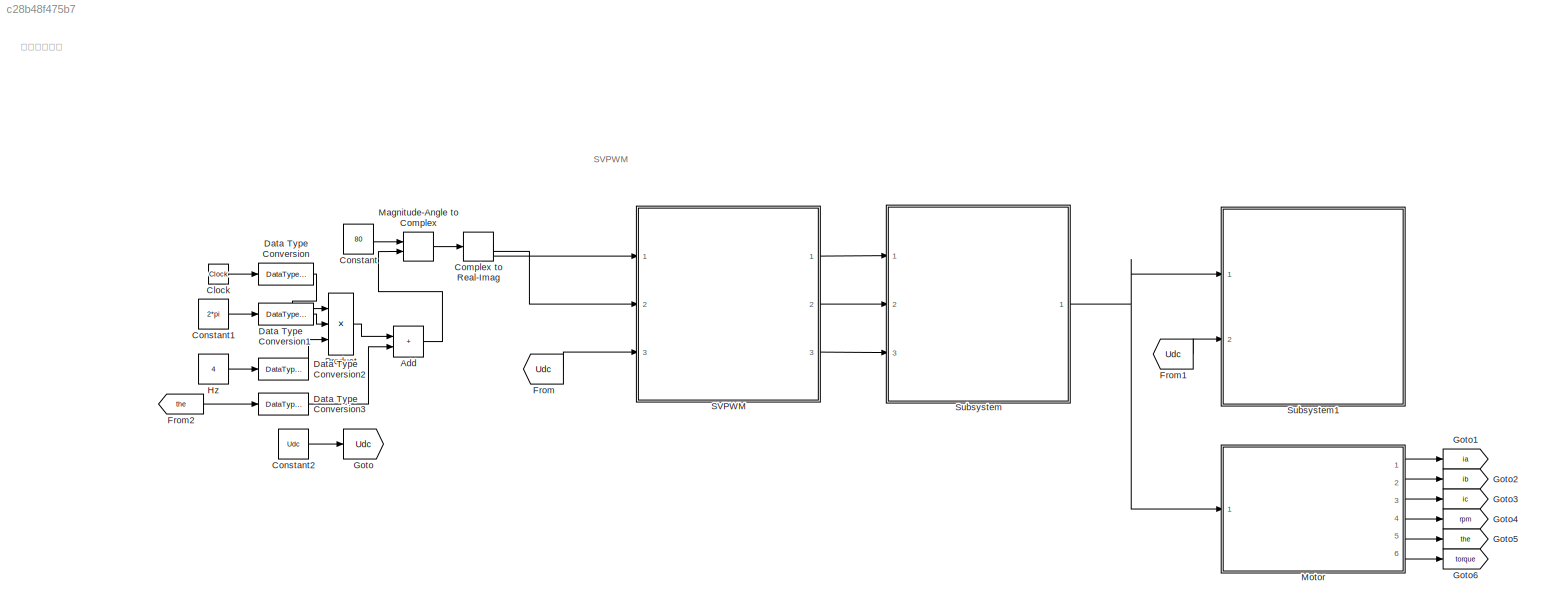
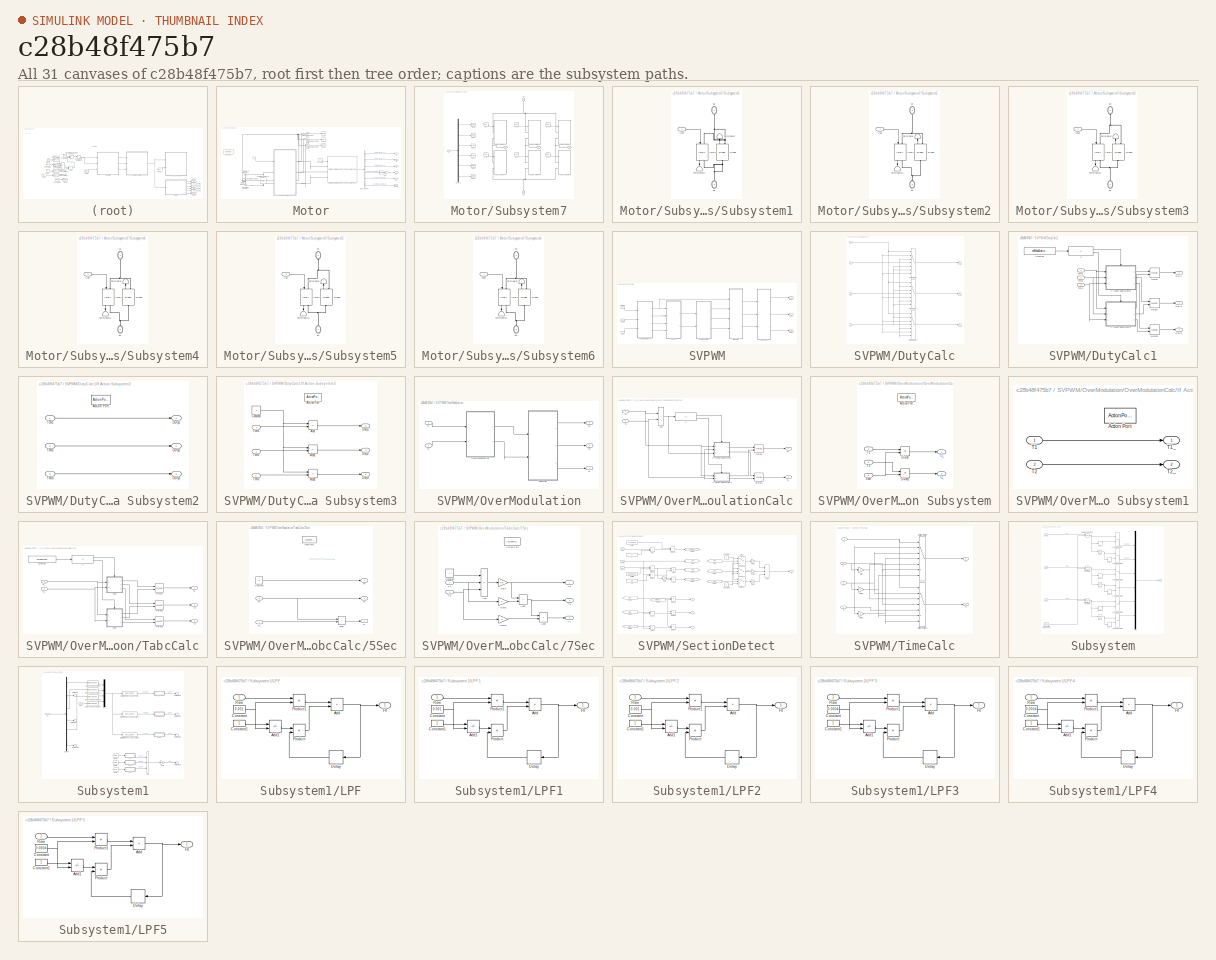
[diagram: thumbnail index - all 31 canvases of the model, root first then tree order]
MODEL slx_c28b48f475b7
KIND model
CONFIG AbsTol = auto
CONFIG EnableMultiTasking = off
CONFIG FixedStep = sysStep
CONFIG InitFcn = % 华为参数\nsysStep = 0.5e-6;\nUdc = 300;\nPrdPwmCarr = 3125;\nTs = 2e-8 * PrdPwmCarr;\nen7SecMod = true;\nenModulationUp = true;\ndeadtimeDelay = uint8(5e-6/sysStep); %5us deadtime\n\n%电机参数\npolepairs = 4;
CONFIG MaxStep = auto
CONFIG MinStep = auto
CONFIG RelTol = 1e-3
CONFIG SampleTimeConstraint = Unconstrained
CONFIG SolverName = FixedStepDiscrete
CONFIG StartTime = 0.0
CONFIG StopTime = 0.5
BLOCK [Sum] Add
  IconShape = rectangular
  Ports = [2, 1]
BLOCK [Clock] Clock
BLOCK [ComplexToRealImag] Complex to Real-Imag
  Ports = [1, 2]
BLOCK [Constant] Constant
  OutDataTypeStr = Inherit: Inherit via back propagation
  Value = 80
BLOCK [Constant] Constant1
  OutDataTypeStr = Inherit: Inherit via back propagation
  Value = 2*pi
BLOCK [Constant] Constant2
  OutDataTypeStr = Inherit: Inherit via back propagation
  Value = Udc
BLOCK [DataTypeConversion] Data Type Conversion
  OutDataTypeStr = single
  RndMeth = Floor
  SaturateOnIntegerOverflow = off
BLOCK [DataTypeConversion] Data Type Conversion1
  OutDataTypeStr = single
  RndMeth = Floor
  SaturateOnIntegerOverflow = off
BLOCK [DataTypeConversion] Data Type Conversion2
  OutDataTypeStr = single
  RndMeth = Floor
  SaturateOnIntegerOverflow = off
BLOCK [DataTypeConversion] Data Type Conversion3
  OutDataTypeStr = single
  RndMeth = Floor
  SaturateOnIntegerOverflow = off
BLOCK [From] From
  GotoTag = Udc
BLOCK [From] From1
  GotoTag = Udc
BLOCK [From] From2
  GotoTag = the
BLOCK [Goto] Goto
  GotoTag = Udc
BLOCK [Goto] Goto1
  GotoTag = ia
BLOCK [Goto] Goto2
  GotoTag = ib
BLOCK [Goto] Goto3
  GotoTag = ic
BLOCK [Goto] Goto4
  GotoTag = rpm
BLOCK [Goto] Goto5
  GotoTag = the
BLOCK [Goto] Goto6
  GotoTag = torque
BLOCK [Constant] Hz
  OutDataTypeStr = Inherit: Inherit via back propagation
  Value = 4
BLOCK [MagnitudeAngleToComplex] Magnitude-Angle to Complex
  Ports = [2, 1]
BLOCK [SubSystem] Motor
  Ports = [1, 6]
  RequestExecContextInheritance = off
BLOCK [BusSelector] Motor/Bus Selector
  OutputSignals = Stator current is_a (A),Stator current is_b (A),Stator current is_c (A),Rotor speed wm (rad/s),Rotor angle thetam (rad),Electromagnetic torque Te (N*m)
  Ports = [1, 6]
BLOCK [Constant] Motor/Constant
  OutDataTypeStr = Inherit: Inherit via back propagation
  Value = 0
BLOCK [Reference] Motor/DC Voltage Source  REF=spsDCVoltageSourceLib/DC Voltage Source
  Ports = [0, 0, 0, 0, 0, 1, 1]
  SourceBlock = spsDCVoltageSourceLib/DC Voltage Source
  SourceProductBaseCode = PS
  SourceType = DC Voltage Source
BLOCK [Reference] Motor/DC Voltage Source1  REF=spsDCVoltageSourceLib/DC Voltage Source
  Ports = [0, 0, 0, 0, 0, 1, 1]
  SourceBlock = spsDCVoltageSourceLib/DC Voltage Source
  SourceProductBaseCode = PS
  SourceType = DC Voltage Source
BLOCK [Gain] Motor/Gain
  Gain = polepairs*30/pi
BLOCK [Goto] Motor/Goto
  GotoTag = Uao
  TagVisibility = global
BLOCK [Goto] Motor/Goto1
  GotoTag = Ubo
  TagVisibility = global
BLOCK [Goto] Motor/Goto2
  GotoTag = Uco
  TagVisibility = global
BLOCK [Reference] Motor/Ground  REF=spsGroundLib/Ground
  NameLocation = right
  Ports = [0, 0, 0, 0, 0, 1]
  SourceBlock = spsGroundLib/Ground
  SourceProductBaseCode = PS
  SourceType = Ground
BLOCK [Reference] Motor/Parallel RLC Branch  REF=spsParallelRLCBranchLib/Parallel RLC Branch
  AttributesFormatString = \n
  NameLocation = left
  Ports = [0, 0, 0, 0, 0, 1, 1]
  SourceBlock = spsParallelRLCBranchLib/Parallel RLC Branch
  SourceProductBaseCode = PS
  SourceType = Parallel RLC Branch
BLOCK [Reference] Motor/Parallel RLC Branch1  REF=spsParallelRLCBranchLib/Parallel RLC Branch
  AttributesFormatString = \n
  NameLocation = left
  Ports = [0, 0, 0, 0, 0, 1, 1]
  SourceBlock = spsParallelRLCBranchLib/Parallel RLC Branch
  SourceProductBaseCode = PS
  SourceType = Parallel RLC Branch
BLOCK [Reference] Motor/Permanent Magnet Synchronous Machine  REF=spsPermanentMagnetSynchronousMachineLib/Permanent Magnet
Synchronous Machine
  Ports = [1, 1, 0, 0, 0, 3]
  SourceBlock = spsPermanentMagnetSynchronousMachineLib/Permanent Magnet\nSynchronous Machine
  SourceProductBaseCode = PS
  SourceType = Permanent Magnet Synchronous Machine
BLOCK [SubSystem] Motor/Subsystem7
  Ports = [1, 0, 0, 0, 0, 2, 3]
  RequestExecContextInheritance = off
BLOCK [Demux] Motor/Subsystem7/Demux
  Outputs = 6
  Ports = [1, 6]
BLOCK [From] Motor/Subsystem7/From
  GotoTag = Uup
BLOCK [From] Motor/Subsystem7/From1
  GotoTag = Udn
BLOCK [From] Motor/Subsystem7/From2
  GotoTag = Vup
BLOCK [From] Motor/Subsystem7/From3
  GotoTag = Vdn
BLOCK [From] Motor/Subsystem7/From4
  GotoTag = Wup
BLOCK [From] Motor/Subsystem7/From5
  GotoTag = Wdn
BLOCK [Goto] Motor/Subsystem7/Goto
  GotoTag = Uup
BLOCK [Goto] Motor/Subsystem7/Goto1
  GotoTag = Udn
BLOCK [Goto] Motor/Subsystem7/Goto2
  GotoTag = Vup
BLOCK [Goto] Motor/Subsystem7/Goto3
  GotoTag = Vdn
BLOCK [Goto] Motor/Subsystem7/Goto4
  GotoTag = Wup
BLOCK [Goto] Motor/Subsystem7/Goto5
  GotoTag = Wdn
BLOCK [SubSystem] Motor/Subsystem7/Subsystem1
  Ports = [1, 0, 0, 0, 0, 2]
  RequestExecContextInheritance = off
BLOCK [Reference] Motor/Subsystem7/Subsystem1/Diode  REF=spsDiodeLib/Diode
  NameLocation = right
  Ports = [0, 1, 0, 0, 0, 1, 1]
  SourceBlock = spsDiodeLib/Diode
  SourceProductBaseCode = PS
  SourceType = Diode
BLOCK [Reference] Motor/Subsystem7/Subsystem1/IGBT  REF=spsIGBTLib/IGBT
  NameLocation = left
  Ports = [1, 1, 0, 0, 0, 1, 1]
  SourceBlock = spsIGBTLib/IGBT
  SourceProductBaseCode = PS
  SourceType = IGBT
BLOCK [Terminator] Motor/Subsystem7/Subsystem1/Terminator
  NameLocation = right
BLOCK [Terminator] Motor/Subsystem7/Subsystem1/Terminator1
  NameLocation = left
BLOCK [Inport] Motor/Subsystem7/Subsystem1/Uup
BLOCK [PMIOPort] Motor/Subsystem7/Subsystem1/dn
  NameLocation = left
  Port = 2
  Side = Left
BLOCK [PMIOPort] Motor/Subsystem7/Subsystem1/up
  NameLocation = left
  Side = Left
BLOCK [SubSystem] Motor/Subsystem7/Subsystem2
  Ports = [1, 0, 0, 0, 0, 2]
  RequestExecContextInheritance = off
BLOCK [Reference] Motor/Subsystem7/Subsystem2/Diode  REF=spsDiodeLib/Diode
  NameLocation = right
  Ports = [0, 1, 0, 0, 0, 1, 1]
  SourceBlock = spsDiodeLib/Diode
  SourceProductBaseCode = PS
  SourceType = Diode
BLOCK [Reference] Motor/Subsystem7/Subsystem2/IGBT  REF=spsIGBTLib/IGBT
  NameLocation = left
  Ports = [1, 1, 0, 0, 0, 1, 1]
  SourceBlock = spsIGBTLib/IGBT
  SourceProductBaseCode = PS
  SourceType = IGBT
BLOCK [Terminator] Motor/Subsystem7/Subsystem2/Terminator
  NameLocation = right
BLOCK [Terminator] Motor/Subsystem7/Subsystem2/Terminator1
  NameLocation = left
BLOCK [Inport] Motor/Subsystem7/Subsystem2/Vup
BLOCK [PMIOPort] Motor/Subsystem7/Subsystem2/dn
  NameLocation = left
  Port = 2
  Side = Left
BLOCK [PMIOPort] Motor/Subsystem7/Subsystem2/up
  NameLocation = left
  Side = Left
BLOCK [SubSystem] Motor/Subsystem7/Subsystem3
  Ports = [1, 0, 0, 0, 0, 2]
  RequestExecContextInheritance = off
BLOCK [Reference] Motor/Subsystem7/Subsystem3/Diode  REF=spsDiodeLib/Diode
  NameLocation = right
  Ports = [0, 1, 0, 0, 0, 1, 1]
  SourceBlock = spsDiodeLib/Diode
  SourceProductBaseCode = PS
  SourceType = Diode
BLOCK [Reference] Motor/Subsystem7/Subsystem3/IGBT  REF=spsIGBTLib/IGBT
  NameLocation = left
  Ports = [1, 1, 0, 0, 0, 1, 1]
  SourceBlock = spsIGBTLib/IGBT
  SourceProductBaseCode = PS
  SourceType = IGBT
BLOCK [Terminator] Motor/Subsystem7/Subsystem3/Terminator
  NameLocation = right
BLOCK [Terminator] Motor/Subsystem7/Subsystem3/Terminator1
  NameLocation = left
BLOCK [Inport] Motor/Subsystem7/Subsystem3/Wup
BLOCK [PMIOPort] Motor/Subsystem7/Subsystem3/dn
  NameLocation = left
  Port = 2
  Side = Left
BLOCK [PMIOPort] Motor/Subsystem7/Subsystem3/up
  NameLocation = left
  Side = Left
BLOCK [SubSystem] Motor/Subsystem7/Subsystem4
  Ports = [1, 0, 0, 0, 0, 2]
  RequestExecContextInheritance = off
BLOCK [Reference] Motor/Subsystem7/Subsystem4/Diode  REF=spsDiodeLib/Diode
  NameLocation = right
  Ports = [0, 1, 0, 0, 0, 1, 1]
  SourceBlock = spsDiodeLib/Diode
  SourceProductBaseCode = PS
  SourceType = Diode
BLOCK [Reference] Motor/Subsystem7/Subsystem4/IGBT  REF=spsIGBTLib/IGBT
  NameLocation = left
  Ports = [1, 1, 0, 0, 0, 1, 1]
  SourceBlock = spsIGBTLib/IGBT
  SourceProductBaseCode = PS
  SourceType = IGBT
BLOCK [Terminator] Motor/Subsystem7/Subsystem4/Terminator
  NameLocation = right
BLOCK [Terminator] Motor/Subsystem7/Subsystem4/Terminator1
  NameLocation = left
BLOCK [Inport] Motor/Subsystem7/Subsystem4/Udn
BLOCK [PMIOPort] Motor/Subsystem7/Subsystem4/dn
  NameLocation = left
  Port = 2
  Side = Left
BLOCK [PMIOPort] Motor/Subsystem7/Subsystem4/up
  NameLocation = left
  Side = Left
BLOCK [SubSystem] Motor/Subsystem7/Subsystem5
  Ports = [1, 0, 0, 0, 0, 2]
  RequestExecContextInheritance = off
BLOCK [Reference] Motor/Subsystem7/Subsystem5/Diode  REF=spsDiodeLib/Diode
  NameLocation = right
  Ports = [0, 1, 0, 0, 0, 1, 1]
  SourceBlock = spsDiodeLib/Diode
  SourceProductBaseCode = PS
  SourceType = Diode
BLOCK [Reference] Motor/Subsystem7/Subsystem5/IGBT  REF=spsIGBTLib/IGBT
  NameLocation = left
  Ports = [1, 1, 0, 0, 0, 1, 1]
  SourceBlock = spsIGBTLib/IGBT
  SourceProductBaseCode = PS
  SourceType = IGBT
BLOCK [Terminator] Motor/Subsystem7/Subsystem5/Terminator
  NameLocation = right
BLOCK [Terminator] Motor/Subsystem7/Subsystem5/Terminator1
  NameLocation = left
BLOCK [Inport] Motor/Subsystem7/Subsystem5/Vdn
BLOCK [PMIOPort] Motor/Subsystem7/Subsystem5/dn
  NameLocation = left
  Port = 2
  Side = Left
BLOCK [PMIOPort] Motor/Subsystem7/Subsystem5/up
  NameLocation = left
  Side = Left
BLOCK [SubSystem] Motor/Subsystem7/Subsystem6
  Ports = [1, 0, 0, 0, 0, 2]
  RequestExecContextInheritance = off
BLOCK [Reference] Motor/Subsystem7/Subsystem6/Diode  REF=spsDiodeLib/Diode
  NameLocation = right
  Ports = [0, 1, 0, 0, 0, 1, 1]
  SourceBlock = spsDiodeLib/Diode
  SourceProductBaseCode = PS
  SourceType = Diode
BLOCK [Reference] Motor/Subsystem7/Subsystem6/IGBT  REF=spsIGBTLib/IGBT
  NameLocation = left
  Ports = [1, 1, 0, 0, 0, 1, 1]
  SourceBlock = spsIGBTLib/IGBT
  SourceProductBaseCode = PS
  SourceType = IGBT
BLOCK [Terminator] Motor/Subsystem7/Subsystem6/Terminator
  NameLocation = right
BLOCK [Terminator] Motor/Subsystem7/Subsystem6/Terminator1
  NameLocation = left
BLOCK [Inport] Motor/Subsystem7/Subsystem6/Wdn
BLOCK [PMIOPort] Motor/Subsystem7/Subsystem6/dn
  NameLocation = left
  Port = 2
  Side = Left
BLOCK [PMIOPort] Motor/Subsystem7/Subsystem6/up
  NameLocation = left
  Side = Left
BLOCK [PMIOPort] Motor/Subsystem7/dn
  NameLocation = left
  Port = 2
  Side = Left
BLOCK [Inport] Motor/Subsystem7/g
BLOCK [PMIOPort] Motor/Subsystem7/u
  NameLocation = top
  Port = 3
  Side = Right
BLOCK [PMIOPort] Motor/Subsystem7/up
  NameLocation = left
  Side = Left
BLOCK [PMIOPort] Motor/Subsystem7/v
  NameLocation = top
  Port = 4
  Side = Right
BLOCK [PMIOPort] Motor/Subsystem7/w
  NameLocation = top
  Port = 5
  Side = Right
BLOCK [Reference] Motor/Voltage Measurement  REF=spsVoltageMeasurementLib/Voltage Measurement
  Ports = [0, 1, 0, 0, 0, 2]
  SourceBlock = spsVoltageMeasurementLib/Voltage Measurement
  SourceProductBaseCode = PS
  SourceType = Voltage Measurement
  UserDataPersistent = on
BLOCK [Reference] Motor/Voltage Measurement1  REF=spsVoltageMeasurementLib/Voltage Measurement
  Ports = [0, 1, 0, 0, 0, 2]
  SourceBlock = spsVoltageMeasurementLib/Voltage Measurement
  SourceProductBaseCode = PS
  SourceType = Voltage Measurement
  UserDataPersistent = on
BLOCK [Reference] Motor/Voltage Measurement2  REF=spsVoltageMeasurementLib/Voltage Measurement
  Ports = [0, 1, 0, 0, 0, 2]
  SourceBlock = spsVoltageMeasurementLib/Voltage Measurement
  SourceProductBaseCode = PS
  SourceType = Voltage Measurement
  UserDataPersistent = on
BLOCK [Inport] Motor/g
BLOCK [Outport] Motor/ia
BLOCK [Outport] Motor/ib
  Port = 2
BLOCK [Outport] Motor/ic
  Port = 3
BLOCK [Reference] Motor/powergui  REF=spspowerguiLib/powergui
  Ports = []
  Priority = 1
  SourceBlock = spspowerguiLib/powergui
  SourceProductBaseCode = PS
  SourceType = PSB option menu block
BLOCK [Outport] Motor/rpm
  Port = 4
BLOCK [Outport] Motor/the
  Port = 5
BLOCK [Outport] Motor/torque
  Port = 6
BLOCK [Product] Product
  Inputs = 3
  Ports = [3, 1]
BLOCK [SubSystem] SVPWM
  Ports = [3, 3]
  RequestExecContextInheritance = off
  TreatAsAtomicUnit = on
BLOCK [SubSystem] SVPWM/DutyCalc
  Ports = [4, 3]
  RequestExecContextInheritance = off
  TreatAsAtomicUnit = on
BLOCK [MultiPortSwitch] SVPWM/DutyCalc/Multiport Switch
  InputSameDT = off
  Inputs = 6
  Ports = [7, 1]
  SaturateOnIntegerOverflow = off
BLOCK [MultiPortSwitch] SVPWM/DutyCalc/Multiport Switch1
  InputSameDT = off
  Inputs = 6
  Ports = [7, 1]
  SaturateOnIntegerOverflow = off
BLOCK [MultiPortSwitch] SVPWM/DutyCalc/Multiport Switch2
  InputSameDT = off
  Inputs = 6
  Ports = [7, 1]
  SaturateOnIntegerOverflow = off
BLOCK [Inport] SVPWM/DutyCalc/N
BLOCK [Inport] SVPWM/DutyCalc/Ta
  Port = 2
BLOCK [Inport] SVPWM/DutyCalc/Tb
  Port = 3
BLOCK [Inport] SVPWM/DutyCalc/Tc
  Port = 4
BLOCK [Outport] SVPWM/DutyCalc/Tcm1
BLOCK [Outport] SVPWM/DutyCalc/Tcm2
  Port = 2
BLOCK [Outport] SVPWM/DutyCalc/Tcm3
  Port = 3
BLOCK [SubSystem] SVPWM/DutyCalc1
  Ports = [3, 3]
  RequestExecContextInheritance = off
  TreatAsAtomicUnit = on
BLOCK [Constant] SVPWM/DutyCalc1/Constant
  Value = enModulationUp
BLOCK [Outport] SVPWM/DutyCalc1/Duty1
BLOCK [Outport] SVPWM/DutyCalc1/Duty2
  Port = 2
BLOCK [Outport] SVPWM/DutyCalc1/Duty3
  Port = 3
BLOCK [If] SVPWM/DutyCalc1/If
  IfExpression = u1 == 1
  Ports = [1, 2]
BLOCK [SubSystem] SVPWM/DutyCalc1/If Action Subsystem2
  Ports = [3, 3, 0, 0, 0, 0, 0, 1]
  RequestExecContextInheritance = off
  TreatAsAtomicUnit = on
BLOCK [ActionPort] SVPWM/DutyCalc1/If Action Subsystem2/Action Port
  ActionPortLabel = else
BLOCK [Outport] SVPWM/DutyCalc1/If Action Subsystem2/Duty1
BLOCK [Outport] SVPWM/DutyCalc1/If Action Subsystem2/Duty2
  Port = 2
BLOCK [Outport] SVPWM/DutyCalc1/If Action Subsystem2/Duty3
  Port = 3
BLOCK [Inport] SVPWM/DutyCalc1/If Action Subsystem2/Tcm1
BLOCK [Inport] SVPWM/DutyCalc1/If Action Subsystem2/Tcm2
  Port = 2
BLOCK [Inport] SVPWM/DutyCalc1/If Action Subsystem2/Tcm3
  Port = 3
BLOCK [SubSystem] SVPWM/DutyCalc1/If Action Subsystem3
  Ports = [3, 3, 0, 0, 0, 0, 0, 1]
  RequestExecContextInheritance = off
  TreatAsAtomicUnit = on
BLOCK [ActionPort] SVPWM/DutyCalc1/If Action Subsystem3/Action Port
  ActionPortLabel = if(u1 == 1)
BLOCK [Sum] SVPWM/DutyCalc1/If Action Subsystem3/Add
  IconShape = rectangular
  Inputs = +-
  Ports = [2, 1]
BLOCK [Sum] SVPWM/DutyCalc1/If Action Subsystem3/Add1
  IconShape = rectangular
  Inputs = +-
  Ports = [2, 1]
BLOCK [Sum] SVPWM/DutyCalc1/If Action Subsystem3/Add2
  IconShape = rectangular
  Inputs = +-
  Ports = [2, 1]
BLOCK [Constant] SVPWM/DutyCalc1/If Action Subsystem3/Constant
  OutDataTypeStr = Inherit: Inherit via back propagation
BLOCK [Outport] SVPWM/DutyCalc1/If Action Subsystem3/Duty1
BLOCK [Outport] SVPWM/DutyCalc1/If Action Subsystem3/Duty2
  Port = 2
BLOCK [Outport] SVPWM/DutyCalc1/If Action Subsystem3/Duty3
  Port = 3
BLOCK [Inport] SVPWM/DutyCalc1/If Action Subsystem3/Tcm1
BLOCK [Inport] SVPWM/DutyCalc1/If Action Subsystem3/Tcm2
  Port = 2
BLOCK [Inport] SVPWM/DutyCalc1/If Action Subsystem3/Tcm3
  Port = 3
BLOCK [Merge] SVPWM/DutyCalc1/Merge
  Ports = [2, 1]
BLOCK [Merge] SVPWM/DutyCalc1/Merge1
  Ports = [2, 1]
BLOCK [Merge] SVPWM/DutyCalc1/Merge2
  Ports = [2, 1]
BLOCK [Inport] SVPWM/DutyCalc1/Tcm1
BLOCK [Inport] SVPWM/DutyCalc1/Tcm2
  Port = 2
BLOCK [Inport] SVPWM/DutyCalc1/Tcm3
  Port = 3
BLOCK [SubSystem] SVPWM/OverModulation
  Ports = [2, 3]
  RequestExecContextInheritance = off
  TreatAsAtomicUnit = on
BLOCK [SubSystem] SVPWM/OverModulation/OverModulationCalc
  Ports = [2, 2]
  RequestExecContextInheritance = off
  TreatAsAtomicUnit = on
BLOCK [Sum] SVPWM/OverModulation/OverModulationCalc/Add
  IconShape = rectangular
  Ports = [2, 1]
BLOCK [If] SVPWM/OverModulation/OverModulationCalc/If
  IfExpression = u1 > 1
  Ports = [1, 2]
BLOCK [SubSystem] SVPWM/OverModulation/OverModulationCalc/If Action Subsystem
  Ports = [3, 2, 0, 0, 0, 0, 0, 1]
  RequestExecContextInheritance = off
  TreatAsAtomicUnit = on
BLOCK [ActionPort] SVPWM/OverModulation/OverModulationCalc/If Action Subsystem/Action Port
  ActionPortLabel = if(u1 > 1)
BLOCK [Product] SVPWM/OverModulation/OverModulationCalc/If Action Subsystem/Divide
  Inputs = */
  Ports = [2, 1]
BLOCK [Product] SVPWM/OverModulation/OverModulationCalc/If Action Subsystem/Divide1
  Inputs = */
  Ports = [2, 1]
BLOCK [Inport] SVPWM/OverModulation/OverModulationCalc/If Action Subsystem/Sum
  Port = 3
BLOCK [Inport] SVPWM/OverModulation/OverModulationCalc/If Action Subsystem/T1
BLOCK [Outport] SVPWM/OverModulation/OverModulationCalc/If Action Subsystem/T1_
BLOCK [Inport] SVPWM/OverModulation/OverModulationCalc/If Action Subsystem/T2
  Port = 2
BLOCK [Outport] SVPWM/OverModulation/OverModulationCalc/If Action Subsystem/T2_
  Port = 2
BLOCK [SubSystem] SVPWM/OverModulation/OverModulationCalc/If Action Subsystem1
  Ports = [2, 2, 0, 0, 0, 0, 0, 1]
  RequestExecContextInheritance = off
  TreatAsAtomicUnit = on
BLOCK [ActionPort] SVPWM/OverModulation/OverModulationCalc/If Action Subsystem1/Action Port
  ActionPortLabel = else
BLOCK [Inport] SVPWM/OverModulation/OverModulationCalc/If Action Subsystem1/T1
BLOCK [Outport] SVPWM/OverModulation/OverModulationCalc/If Action Subsystem1/T1_
BLOCK [Inport] SVPWM/OverModulation/OverModulationCalc/If Action Subsystem1/T2
  Port = 2
BLOCK [Outport] SVPWM/OverModulation/OverModulationCalc/If Action Subsystem1/T2_
  Port = 2
BLOCK [Merge] SVPWM/OverModulation/OverModulationCalc/Merge
  Ports = [2, 1]
BLOCK [Merge] SVPWM/OverModulation/OverModulationCalc/Merge1
  Ports = [2, 1]
BLOCK [Inport] SVPWM/OverModulation/OverModulationCalc/T1
BLOCK [Outport] SVPWM/OverModulation/OverModulationCalc/T1_
BLOCK [Inport] SVPWM/OverModulation/OverModulationCalc/T2
  Port = 2
BLOCK [Outport] SVPWM/OverModulation/OverModulationCalc/T2_
  Port = 2
BLOCK [Inport] SVPWM/OverModulation/T1
BLOCK [Inport] SVPWM/OverModulation/T2
  Port = 2
BLOCK [Outport] SVPWM/OverModulation/Ta
BLOCK [SubSystem] SVPWM/OverModulation/TabcCalc
  Ports = [2, 3]
  RequestExecContextInheritance = off
  TreatAsAtomicUnit = on
BLOCK [SubSystem] SVPWM/OverModulation/TabcCalc/5Sec
  Ports = [2, 3, 0, 0, 0, 0, 0, 1]
  RequestExecContextInheritance = off
  TreatAsAtomicUnit = on
BLOCK [ActionPort] SVPWM/OverModulation/TabcCalc/5Sec/Action Port
  ActionPortLabel = else
BLOCK [Sum] SVPWM/OverModulation/TabcCalc/5Sec/Add2
  IconShape = rectangular
  Ports = [2, 1]
BLOCK [Constant] SVPWM/OverModulation/TabcCalc/5Sec/Constant
  OutDataTypeStr = single
  Value = 0
BLOCK [Inport] SVPWM/OverModulation/TabcCalc/5Sec/T1
BLOCK [Inport] SVPWM/OverModulation/TabcCalc/5Sec/T2
  Port = 2
BLOCK [Outport] SVPWM/OverModulation/TabcCalc/5Sec/Ta
BLOCK [Outport] SVPWM/OverModulation/TabcCalc/5Sec/Tb
  Port = 2
BLOCK [Outport] SVPWM/OverModulation/TabcCalc/5Sec/Tc
  Port = 3
BLOCK [SubSystem] SVPWM/OverModulation/TabcCalc/7Sec
  Ports = [2, 3, 0, 0, 0, 0, 0, 1]
  RequestExecContextInheritance = off
  TreatAsAtomicUnit = on
BLOCK [ActionPort] SVPWM/OverModulation/TabcCalc/7Sec/Action Port
  ActionPortLabel = if(u1 ~= 0)
BLOCK [Sum] SVPWM/OverModulation/TabcCalc/7Sec/Add
  IconShape = rectangular
  Inputs = +--
  Ports = [3, 1]
BLOCK [Sum] SVPWM/OverModulation/TabcCalc/7Sec/Add1
  IconShape = rectangular
  Ports = [2, 1]
BLOCK [Sum] SVPWM/OverModulation/TabcCalc/7Sec/Add2
  IconShape = rectangular
  Ports = [2, 1]
BLOCK [Constant] SVPWM/OverModulation/TabcCalc/7Sec/Constant
  OutDataTypeStr = single
BLOCK [Gain] SVPWM/OverModulation/TabcCalc/7Sec/Gain
  Gain = 0.5
BLOCK [Gain] SVPWM/OverModulation/TabcCalc/7Sec/Gain1
BLOCK [Gain] SVPWM/OverModulation/TabcCalc/7Sec/Gain2
BLOCK [Inport] SVPWM/OverModulation/TabcCalc/7Sec/T1
BLOCK [Inport] SVPWM/OverModulation/TabcCalc/7Sec/T2
  Port = 2
BLOCK [Outport] SVPWM/OverModulation/TabcCalc/7Sec/Ta
BLOCK [Outport] SVPWM/OverModulation/TabcCalc/7Sec/Tb
  Port = 2
BLOCK [Outport] SVPWM/OverModulation/TabcCalc/7Sec/Tc
  Port = 3
BLOCK [Constant] SVPWM/OverModulation/TabcCalc/Constant
  Value = en7SecMod
BLOCK [If] SVPWM/OverModulation/TabcCalc/If
  IfExpression = u1 ~= 0
  Ports = [1, 2]
BLOCK [Merge] SVPWM/OverModulation/TabcCalc/Merge
  Ports = [2, 1]
BLOCK [Merge] SVPWM/OverModulation/TabcCalc/Merge1
  Ports = [2, 1]
BLOCK [Merge] SVPWM/OverModulation/TabcCalc/Merge2
  Ports = [2, 1]
BLOCK [Inport] SVPWM/OverModulation/TabcCalc/T1_
BLOCK [Inport] SVPWM/OverModulation/TabcCalc/T2_
  Port = 2
BLOCK [Outport] SVPWM/OverModulation/TabcCalc/Ta
BLOCK [Outport] SVPWM/OverModulation/TabcCalc/Tb
  Port = 2
BLOCK [Outport] SVPWM/OverModulation/TabcCalc/Tc
  Port = 3
BLOCK [Outport] SVPWM/OverModulation/Tb
  Port = 2
BLOCK [Outport] SVPWM/OverModulation/Tc
  Port = 3
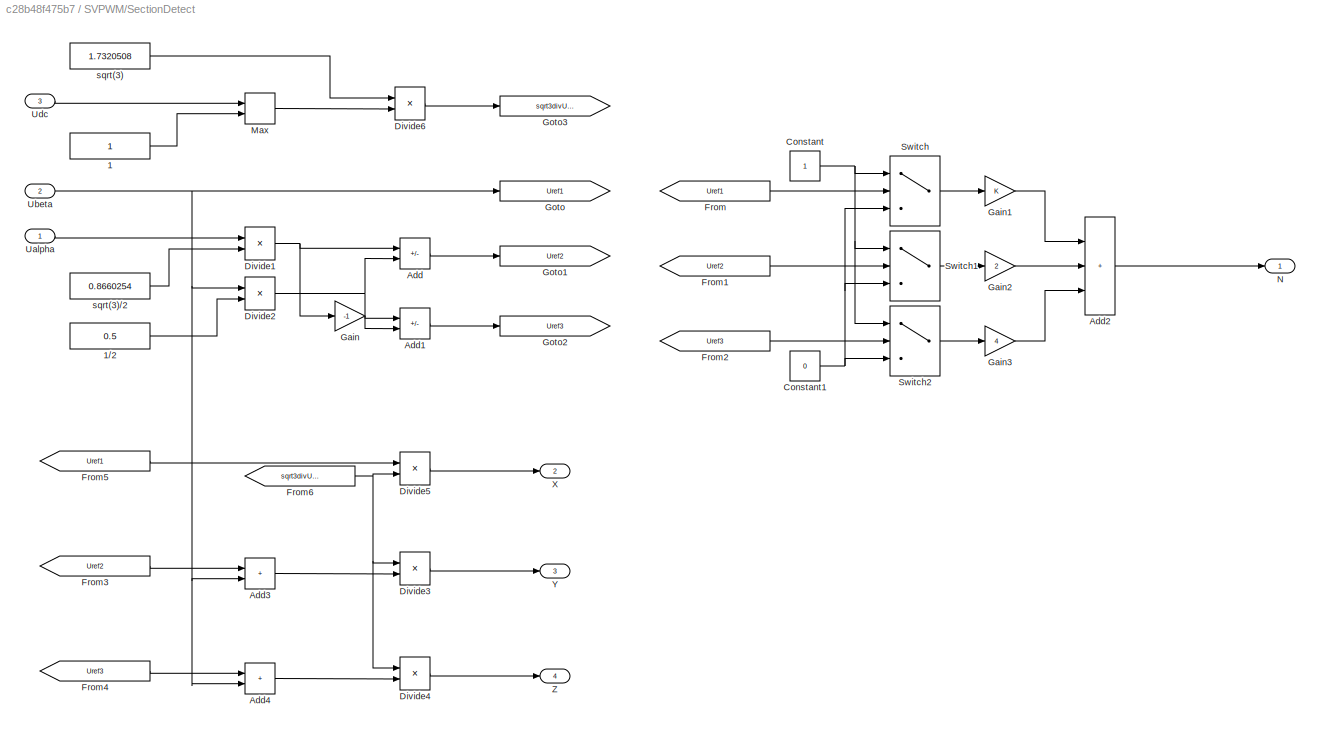
BLOCK [SubSystem] SVPWM/SectionDetect
  Ports = [3, 4]
  RequestExecContextInheritance = off
  TreatAsAtomicUnit = on
BLOCK [Constant] SVPWM/SectionDetect/1
  OutDataTypeStr = single
BLOCK [Constant] SVPWM/SectionDetect/1//2
  OutDataTypeStr = single
  Value = 0.5
BLOCK [Sum] SVPWM/SectionDetect/Add
  IconShape = rectangular
  Inputs = +-
  Ports = [2, 1]
BLOCK [Sum] SVPWM/SectionDetect/Add1
  IconShape = rectangular
  Inputs = +-
  Ports = [2, 1]
BLOCK [Sum] SVPWM/SectionDetect/Add2
  IconShape = rectangular
  Inputs = +++
  Ports = [3, 1]
BLOCK [Sum] SVPWM/SectionDetect/Add3
  IconShape = rectangular
  Ports = [2, 1]
BLOCK [Sum] SVPWM/SectionDetect/Add4
  IconShape = rectangular
  Ports = [2, 1]
BLOCK [Constant] SVPWM/SectionDetect/Constant
  OutDataTypeStr = uint8
BLOCK [Constant] SVPWM/SectionDetect/Constant1
  OutDataTypeStr = uint8
  Value = 0
BLOCK [Product] SVPWM/SectionDetect/Divide1
  Inputs = **
  Ports = [2, 1]
BLOCK [Product] SVPWM/SectionDetect/Divide2
  Inputs = **
  Ports = [2, 1]
BLOCK [Product] SVPWM/SectionDetect/Divide3
  Inputs = **
  Ports = [2, 1]
BLOCK [Product] SVPWM/SectionDetect/Divide4
  Inputs = **
  Ports = [2, 1]
BLOCK [Product] SVPWM/SectionDetect/Divide5
  Inputs = **
  Ports = [2, 1]
BLOCK [Product] SVPWM/SectionDetect/Divide6
  Inputs = */
  Ports = [2, 1]
BLOCK [From] SVPWM/SectionDetect/From
  GotoTag = Uref1
BLOCK [From] SVPWM/SectionDetect/From1
  GotoTag = Uref2
BLOCK [From] SVPWM/SectionDetect/From2
  GotoTag = Uref3
BLOCK [From] SVPWM/SectionDetect/From3
  GotoTag = Uref2
BLOCK [From] SVPWM/SectionDetect/From4
  GotoTag = Uref3
BLOCK [From] SVPWM/SectionDetect/From5
  GotoTag = Uref1
BLOCK [From] SVPWM/SectionDetect/From6
  GotoTag = sqrt3divUdc
BLOCK [Gain] SVPWM/SectionDetect/Gain
  Gain = -1
BLOCK [Gain] SVPWM/SectionDetect/Gain1
BLOCK [Gain] SVPWM/SectionDetect/Gain2
  Gain = 2
BLOCK [Gain] SVPWM/SectionDetect/Gain3
  Gain = 4
BLOCK [Goto] SVPWM/SectionDetect/Goto
  GotoTag = Uref1
BLOCK [Goto] SVPWM/SectionDetect/Goto1
  GotoTag = Uref2
BLOCK [Goto] SVPWM/SectionDetect/Goto2
  GotoTag = Uref3
BLOCK [Goto] SVPWM/SectionDetect/Goto3
  GotoTag = sqrt3divUdc
BLOCK [MinMax] SVPWM/SectionDetect/Max
  Function = max
  Inputs = 2
  Ports = [2, 1]
BLOCK [Outport] SVPWM/SectionDetect/N
BLOCK [Switch] SVPWM/SectionDetect/Switch
  Criteria = u2 > Threshold
  InputSameDT = off
  SaturateOnIntegerOverflow = off
BLOCK [Switch] SVPWM/SectionDetect/Switch1
  Criteria = u2 > Threshold
  InputSameDT = off
  SaturateOnIntegerOverflow = off
BLOCK [Switch] SVPWM/SectionDetect/Switch2
  Criteria = u2 > Threshold
  InputSameDT = off
  SaturateOnIntegerOverflow = off
BLOCK [Inport] SVPWM/SectionDetect/Ualpha
BLOCK [Inport] SVPWM/SectionDetect/Ubeta
  Port = 2
BLOCK [Inport] SVPWM/SectionDetect/Udc
  Port = 3
BLOCK [Outport] SVPWM/SectionDetect/X
  Port = 2
BLOCK [Outport] SVPWM/SectionDetect/Y
  Port = 3
BLOCK [Outport] SVPWM/SectionDetect/Z
  Port = 4
BLOCK [Constant] SVPWM/SectionDetect/sqrt(3)
  OutDataTypeStr = single
  Value = 1.7320508
BLOCK [Constant] SVPWM/SectionDetect/sqrt(3)//2
  OutDataTypeStr = single
  Value = 0.8660254
BLOCK [SubSystem] SVPWM/TimeCalc
  Ports = [4, 2]
  RequestExecContextInheritance = off
  TreatAsAtomicUnit = on
BLOCK [Gain] SVPWM/TimeCalc/Gain
  Gain = -1
BLOCK [Gain] SVPWM/TimeCalc/Gain1
  Gain = -1
BLOCK [Gain] SVPWM/TimeCalc/Gain2
  Gain = -1
BLOCK [MultiPortSwitch] SVPWM/TimeCalc/Multiport Switch
  InputSameDT = off
  Inputs = 6
  Ports = [7, 1]
  SaturateOnIntegerOverflow = off
BLOCK [MultiPortSwitch] SVPWM/TimeCalc/Multiport Switch1
  InputSameDT = off
  Inputs = 6
  Ports = [7, 1]
  SaturateOnIntegerOverflow = off
BLOCK [Inport] SVPWM/TimeCalc/N
BLOCK [Outport] SVPWM/TimeCalc/T1
BLOCK [Outport] SVPWM/TimeCalc/T2
  Port = 2
BLOCK [Inport] SVPWM/TimeCalc/X
  Port = 2
BLOCK [Inport] SVPWM/TimeCalc/Y
  Port = 3
BLOCK [Inport] SVPWM/TimeCalc/Z
  Port = 4
BLOCK [Inport] SVPWM/Ualpha
BLOCK [Inport] SVPWM/Ubeta
  Port = 2
BLOCK [Inport] SVPWM/Udc
  Port = 3
BLOCK [Outport] SVPWM/duty1
BLOCK [Outport] SVPWM/duty2
  Port = 2
BLOCK [Outport] SVPWM/duty3
  Port = 3
BLOCK [SubSystem] Subsystem
  Ports = [3, 1]
  RequestExecContextInheritance = off
BLOCK [Delay] Subsystem/Delay
  DelayLength = deadtimeDelay
  InputPortMap = u0
  Ports = [1, 1]
BLOCK [Delay] Subsystem/Delay1
  DelayLength = deadtimeDelay
  InputPortMap = u0
  Ports = [1, 1]
BLOCK [Delay] Subsystem/Delay2
  DelayLength = deadtimeDelay
  InputPortMap = u0
  Ports = [1, 1]
BLOCK [Delay] Subsystem/Delay3
  DelayLength = deadtimeDelay
  InputPortMap = u0
  Ports = [1, 1]
BLOCK [Delay] Subsystem/Delay4
  DelayLength = deadtimeDelay
  InputPortMap = u0
  Ports = [1, 1]
BLOCK [Delay] Subsystem/Delay5
  DelayLength = deadtimeDelay
  InputPortMap = u0
  Ports = [1, 1]
BLOCK [Logic] Subsystem/Logical Operator
  AllPortsSameDT = off
  OutDataTypeStr = boolean
  Ports = [2, 1]
BLOCK [Logic] Subsystem/Logical Operator1
  AllPortsSameDT = off
  OutDataTypeStr = boolean
  Ports = [2, 1]
BLOCK [Logic] Subsystem/Logical Operator2
  AllPortsSameDT = off
  OutDataTypeStr = boolean
  Ports = [2, 1]
BLOCK [Logic] Subsystem/Logical Operator3
  AllPortsSameDT = off
  OutDataTypeStr = boolean
  Ports = [2, 1]
BLOCK [Logic] Subsystem/Logical Operator4
  AllPortsSameDT = off
  OutDataTypeStr = boolean
  Ports = [2, 1]
BLOCK [Logic] Subsystem/Logical Operator5
  AllPortsSameDT = off
  OutDataTypeStr = boolean
  Ports = [2, 1]
BLOCK [Mux] Subsystem/Mux
  DisplayOption = bar
  Inputs = 6
  Ports = [6, 1]
BLOCK [Logic] Subsystem/NOT
  AllPortsSameDT = off
  Operator = NOT
  OutDataTypeStr = boolean
  Ports = [1, 1]
BLOCK [Logic] Subsystem/NOT1
  AllPortsSameDT = off
  Operator = NOT
  OutDataTypeStr = boolean
  Ports = [1, 1]
BLOCK [Logic] Subsystem/NOT2
  AllPortsSameDT = off
  Operator = NOT
  OutDataTypeStr = boolean
  Ports = [1, 1]
BLOCK [RelationalOperator] Subsystem/Relational Operator
  InputSameDT = off
  OutDataTypeStr = boolean
  Ports = [2, 1]
  RndMeth = Simplest
BLOCK [RelationalOperator] Subsystem/Relational Operator1
  InputSameDT = off
  OutDataTypeStr = boolean
  Ports = [2, 1]
  RndMeth = Simplest
BLOCK [RelationalOperator] Subsystem/Relational Operator2
  InputSameDT = off
  OutDataTypeStr = boolean
  Ports = [2, 1]
  RndMeth = Simplest
BLOCK [Reference] Subsystem/Repeating Sequence1  REF=simulink/Sources/Repeating
Sequence
  Ports = [0, 1]
  SourceBlock = simulink/Sources/Repeating\nSequence
  SourceProductBaseCode = SL
  SourceType = Repeating table
BLOCK [Inport] Subsystem/duty1
BLOCK [Inport] Subsystem/duty2
  Port = 2
BLOCK [Inport] Subsystem/duty3
  Port = 3
BLOCK [Outport] Subsystem/g
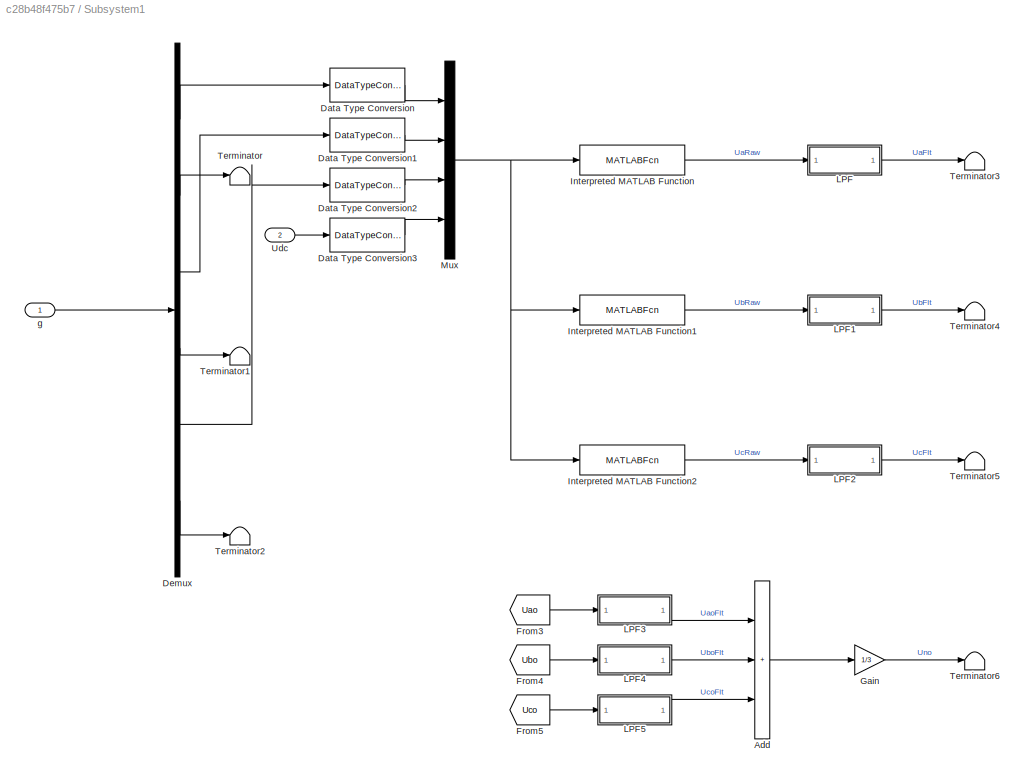
BLOCK [SubSystem] Subsystem1
  Ports = [2]
  RequestExecContextInheritance = off
BLOCK [Sum] Subsystem1/Add
  IconShape = rectangular
  Inputs = +++
  Ports = [3, 1]
BLOCK [DataTypeConversion] Subsystem1/Data Type Conversion
  OutDataTypeStr = double
  RndMeth = Floor
  SaturateOnIntegerOverflow = off
BLOCK [DataTypeConversion] Subsystem1/Data Type Conversion1
  OutDataTypeStr = double
  RndMeth = Floor
  SaturateOnIntegerOverflow = off
BLOCK [DataTypeConversion] Subsystem1/Data Type Conversion2
  OutDataTypeStr = double
  RndMeth = Floor
  SaturateOnIntegerOverflow = off
BLOCK [DataTypeConversion] Subsystem1/Data Type Conversion3
  OutDataTypeStr = double
  RndMeth = Floor
  SaturateOnIntegerOverflow = off
BLOCK [Demux] Subsystem1/Demux
  Outputs = 6
  Ports = [1, 6]
BLOCK [From] Subsystem1/From3
  GotoTag = Uao
  TagVisibility = global
BLOCK [From] Subsystem1/From4
  GotoTag = Ubo
  TagVisibility = global
BLOCK [From] Subsystem1/From5
  GotoTag = Uco
  TagVisibility = global
BLOCK [Gain] Subsystem1/Gain
  Gain = 1/3
BLOCK [MATLABFcn] Subsystem1/Interpreted MATLAB Function
  MATLABFcn = 1/3*u(4)*(2*u(1)-u(2)-u(3))
  OutputSignalType = real
  Ports = [1, 1]
BLOCK [MATLABFcn] Subsystem1/Interpreted MATLAB Function1
  MATLABFcn = 1/3*u(4)*(2*u(2)-u(1)-u(3))
  OutputSignalType = real
  Ports = [1, 1]
BLOCK [MATLABFcn] Subsystem1/Interpreted MATLAB Function2
  MATLABFcn = 1/3*u(4)*(2*u(3)-u(1)-u(2))
  OutputSignalType = real
  Ports = [1, 1]
BLOCK [SubSystem] Subsystem1/LPF
  Ports = [1, 1]
  RequestExecContextInheritance = off
  TreatAsAtomicUnit = on
BLOCK [Sum] Subsystem1/LPF/Add
  IconShape = rectangular
  Ports = [2, 1]
BLOCK [Sum] Subsystem1/LPF/Add1
  IconShape = rectangular
  Inputs = +-
  Ports = [2, 1]
BLOCK [Constant] Subsystem1/LPF/Constant
  OutDataTypeStr = Inherit: Inherit via back propagation
  Value = 0.001
BLOCK [Constant] Subsystem1/LPF/Constant1
  OutDataTypeStr = Inherit: Inherit via back propagation
BLOCK [Delay] Subsystem1/LPF/Delay
  DelayLength = 1
  InputPortMap = u0
  NameLocation = top
  Ports = [1, 1]
BLOCK [Outport] Subsystem1/LPF/Flt
BLOCK [Product] Subsystem1/LPF/Product
  Ports = [2, 1]
BLOCK [Product] Subsystem1/LPF/Product1
  Ports = [2, 1]
BLOCK [Inport] Subsystem1/LPF/Raw
BLOCK [SubSystem] Subsystem1/LPF1
  Ports = [1, 1]
  RequestExecContextInheritance = off
  TreatAsAtomicUnit = on
BLOCK [Sum] Subsystem1/LPF1/Add
  IconShape = rectangular
  Ports = [2, 1]
BLOCK [Sum] Subsystem1/LPF1/Add1
  IconShape = rectangular
  Inputs = +-
  Ports = [2, 1]
BLOCK [Constant] Subsystem1/LPF1/Constant
  OutDataTypeStr = Inherit: Inherit via back propagation
  Value = 0.001
BLOCK [Constant] Subsystem1/LPF1/Constant1
  OutDataTypeStr = Inherit: Inherit via back propagation
BLOCK [Delay] Subsystem1/LPF1/Delay
  DelayLength = 1
  InputPortMap = u0
  NameLocation = top
  Ports = [1, 1]
BLOCK [Outport] Subsystem1/LPF1/Flt
BLOCK [Product] Subsystem1/LPF1/Product
  Ports = [2, 1]
BLOCK [Product] Subsystem1/LPF1/Product1
  Ports = [2, 1]
BLOCK [Inport] Subsystem1/LPF1/Raw
BLOCK [SubSystem] Subsystem1/LPF2
  Ports = [1, 1]
  RequestExecContextInheritance = off
  TreatAsAtomicUnit = on
BLOCK [Sum] Subsystem1/LPF2/Add
  IconShape = rectangular
  Ports = [2, 1]
BLOCK [Sum] Subsystem1/LPF2/Add1
  IconShape = rectangular
  Inputs = +-
  Ports = [2, 1]
BLOCK [Constant] Subsystem1/LPF2/Constant
  OutDataTypeStr = Inherit: Inherit via back propagation
  Value = 0.001
BLOCK [Constant] Subsystem1/LPF2/Constant1
  OutDataTypeStr = Inherit: Inherit via back propagation
BLOCK [Delay] Subsystem1/LPF2/Delay
  DelayLength = 1
  InputPortMap = u0
  NameLocation = top
  Ports = [1, 1]
BLOCK [Outport] Subsystem1/LPF2/Flt
BLOCK [Product] Subsystem1/LPF2/Product
  Ports = [2, 1]
BLOCK [Product] Subsystem1/LPF2/Product1
  Ports = [2, 1]
BLOCK [Inport] Subsystem1/LPF2/Raw
BLOCK [SubSystem] Subsystem1/LPF3
  Ports = [1, 1]
  RequestExecContextInheritance = off
  TreatAsAtomicUnit = on
BLOCK [Sum] Subsystem1/LPF3/Add
  IconShape = rectangular
  Ports = [2, 1]
BLOCK [Sum] Subsystem1/LPF3/Add1
  IconShape = rectangular
  Inputs = +-
  Ports = [2, 1]
BLOCK [Constant] Subsystem1/LPF3/Constant
  OutDataTypeStr = Inherit: Inherit via back propagation
  Value = 0.0004
BLOCK [Constant] Subsystem1/LPF3/Constant1
  OutDataTypeStr = Inherit: Inherit via back propagation
BLOCK [Delay] Subsystem1/LPF3/Delay
  DelayLength = 1
  InputPortMap = u0
  NameLocation = top
  Ports = [1, 1]
BLOCK [Outport] Subsystem1/LPF3/Flt
BLOCK [Product] Subsystem1/LPF3/Product
  Ports = [2, 1]
BLOCK [Product] Subsystem1/LPF3/Product1
  Ports = [2, 1]
BLOCK [Inport] Subsystem1/LPF3/Raw
BLOCK [SubSystem] Subsystem1/LPF4
  Ports = [1, 1]
  RequestExecContextInheritance = off
  TreatAsAtomicUnit = on
BLOCK [Sum] Subsystem1/LPF4/Add
  IconShape = rectangular
  Ports = [2, 1]
BLOCK [Sum] Subsystem1/LPF4/Add1
  IconShape = rectangular
  Inputs = +-
  Ports = [2, 1]
BLOCK [Constant] Subsystem1/LPF4/Constant
  OutDataTypeStr = Inherit: Inherit via back propagation
  Value = 0.0004
BLOCK [Constant] Subsystem1/LPF4/Constant1
  OutDataTypeStr = Inherit: Inherit via back propagation
BLOCK [Delay] Subsystem1/LPF4/Delay
  DelayLength = 1
  InputPortMap = u0
  NameLocation = top
  Ports = [1, 1]
BLOCK [Outport] Subsystem1/LPF4/Flt
BLOCK [Product] Subsystem1/LPF4/Product
  Ports = [2, 1]
BLOCK [Product] Subsystem1/LPF4/Product1
  Ports = [2, 1]
BLOCK [Inport] Subsystem1/LPF4/Raw
BLOCK [SubSystem] Subsystem1/LPF5
  Ports = [1, 1]
  RequestExecContextInheritance = off
  TreatAsAtomicUnit = on
BLOCK [Sum] Subsystem1/LPF5/Add
  IconShape = rectangular
  Ports = [2, 1]
BLOCK [Sum] Subsystem1/LPF5/Add1
  IconShape = rectangular
  Inputs = +-
  Ports = [2, 1]
BLOCK [Constant] Subsystem1/LPF5/Constant
  OutDataTypeStr = Inherit: Inherit via back propagation
  Value = 0.0004
BLOCK [Constant] Subsystem1/LPF5/Constant1
  OutDataTypeStr = Inherit: Inherit via back propagation
BLOCK [Delay] Subsystem1/LPF5/Delay
  DelayLength = 1
  InputPortMap = u0
  NameLocation = top
  Ports = [1, 1]
BLOCK [Outport] Subsystem1/LPF5/Flt
BLOCK [Product] Subsystem1/LPF5/Product
  Ports = [2, 1]
BLOCK [Product] Subsystem1/LPF5/Product1
  Ports = [2, 1]
BLOCK [Inport] Subsystem1/LPF5/Raw
BLOCK [Mux] Subsystem1/Mux
  DisplayOption = bar
  Ports = [4, 1]
BLOCK [Terminator] Subsystem1/Terminator
BLOCK [Terminator] Subsystem1/Terminator1
BLOCK [Terminator] Subsystem1/Terminator2
BLOCK [Terminator] Subsystem1/Terminator3
BLOCK [Terminator] Subsystem1/Terminator4
BLOCK [Terminator] Subsystem1/Terminator5
BLOCK [Terminator] Subsystem1/Terminator6
BLOCK [Inport] Subsystem1/Udc
  OutDataTypeStr = single
  Port = 2
BLOCK [Inport] Subsystem1/g
ANNOTATION (root): SVPWM
ANNOTATION (root): 可以生成代码
ANNOTATION SVPWM/OverModulation/TabcCalc/5Sec: 零矢量选择全部为U7(1,1,1)
LINE Add:1 -> Magnitude-Angle to Complex:2
LINE Clock:1 -> Data Type Conversion:1
LINE Complex to Real-Imag:1 -> SVPWM:1
LINE Complex to Real-Imag:2 -> SVPWM:2
LINE Constant1:1 -> Data Type Conversion1:1
LINE Constant2:1 -> Goto:1
LINE Constant:1 -> Magnitude-Angle to Complex:1
LINE Data Type Conversion1:1 -> Product:2
LINE Data Type Conversion2:1 -> Product:3
LINE Data Type Conversion3:1 -> Add:2
LINE Data Type Conversion:1 -> Product:1
LINE From1:1 -> Subsystem1:2
LINE From2:1 -> Data Type Conversion3:1
LINE From:1 -> SVPWM:3
LINE Hz:1 -> Data Type Conversion2:1
LINE Magnitude-Angle to Complex:1 -> Complex to Real-Imag:1
LINE Motor/Bus Selector:1 -> Motor/ia:1
LINE Motor/Bus Selector:2 -> Motor/ib:1
LINE Motor/Bus Selector:3 -> Motor/ic:1
LINE Motor/Bus Selector:4 -> Motor/Gain:1
LINE Motor/Bus Selector:5 -> Motor/the:1
LINE Motor/Bus Selector:6 -> Motor/torque:1
LINE Motor/Constant:1 -> Motor/Permanent Magnet Synchronous Machine:1
LINE Motor/Gain:1 -> Motor/rpm:1
LINE Motor/Permanent Magnet Synchronous Machine:1 -> Motor/Bus Selector:1
LINE Motor/Subsystem7/Demux:1 -> Motor/Subsystem7/Goto:1
LINE Motor/Subsystem7/Demux:2 -> Motor/Subsystem7/Goto1:1
LINE Motor/Subsystem7/Demux:3 -> Motor/Subsystem7/Goto2:1
LINE Motor/Subsystem7/Demux:4 -> Motor/Subsystem7/Goto3:1
LINE Motor/Subsystem7/Demux:5 -> Motor/Subsystem7/Goto4:1
LINE Motor/Subsystem7/Demux:6 -> Motor/Subsystem7/Goto5:1
LINE Motor/Subsystem7/From1:1 -> Motor/Subsystem7/Subsystem4:1
LINE Motor/Subsystem7/From2:1 -> Motor/Subsystem7/Subsystem2:1
LINE Motor/Subsystem7/From3:1 -> Motor/Subsystem7/Subsystem5:1
LINE Motor/Subsystem7/From4:1 -> Motor/Subsystem7/Subsystem3:1
LINE Motor/Subsystem7/From5:1 -> Motor/Subsystem7/Subsystem6:1
LINE Motor/Subsystem7/From:1 -> Motor/Subsystem7/Subsystem1:1
LINE Motor/Subsystem7/Subsystem1/Diode:1 -> Motor/Subsystem7/Subsystem1/Terminator:1
LINE Motor/Subsystem7/Subsystem1/IGBT:1 -> Motor/Subsystem7/Subsystem1/Terminator1:1
LINE Motor/Subsystem7/Subsystem1/Uup:1 -> Motor/Subsystem7/Subsystem1/IGBT:1
LINE Motor/Subsystem7/Subsystem2/Diode:1 -> Motor/Subsystem7/Subsystem2/Terminator:1
LINE Motor/Subsystem7/Subsystem2/IGBT:1 -> Motor/Subsystem7/Subsystem2/Terminator1:1
LINE Motor/Subsystem7/Subsystem2/Vup:1 -> Motor/Subsystem7/Subsystem2/IGBT:1
LINE Motor/Subsystem7/Subsystem3/Diode:1 -> Motor/Subsystem7/Subsystem3/Terminator:1
LINE Motor/Subsystem7/Subsystem3/IGBT:1 -> Motor/Subsystem7/Subsystem3/Terminator1:1
LINE Motor/Subsystem7/Subsystem3/Wup:1 -> Motor/Subsystem7/Subsystem3/IGBT:1
LINE Motor/Subsystem7/Subsystem4/Diode:1 -> Motor/Subsystem7/Subsystem4/Terminator:1
LINE Motor/Subsystem7/Subsystem4/IGBT:1 -> Motor/Subsystem7/Subsystem4/Terminator1:1
LINE Motor/Subsystem7/Subsystem4/Udn:1 -> Motor/Subsystem7/Subsystem4/IGBT:1
LINE Motor/Subsystem7/Subsystem5/Diode:1 -> Motor/Subsystem7/Subsystem5/Terminator:1
LINE Motor/Subsystem7/Subsystem5/IGBT:1 -> Motor/Subsystem7/Subsystem5/Terminator1:1
LINE Motor/Subsystem7/Subsystem5/Vdn:1 -> Motor/Subsystem7/Subsystem5/IGBT:1
LINE Motor/Subsystem7/Subsystem6/Diode:1 -> Motor/Subsystem7/Subsystem6/Terminator:1
LINE Motor/Subsystem7/Subsystem6/IGBT:1 -> Motor/Subsystem7/Subsystem6/Terminator1:1
LINE Motor/Subsystem7/Subsystem6/Wdn:1 -> Motor/Subsystem7/Subsystem6/IGBT:1
LINE Motor/Subsystem7/g:1 -> Motor/Subsystem7/Demux:1
LINE Motor/Voltage Measurement1:1 -> Motor/Goto1:1
LINE Motor/Voltage Measurement2:1 -> Motor/Goto2:1
LINE Motor/Voltage Measurement:1 -> Motor/Goto:1
LINE Motor/g:1 -> Motor/Subsystem7:1
LINE Motor:1 -> Goto1:1
LINE Motor:2 -> Goto2:1
LINE Motor:3 -> Goto3:1
LINE Motor:4 -> Goto4:1
LINE Motor:5 -> Goto5:1
LINE Motor:6 -> Goto6:1
LINE Product:1 -> Add:1
LINE SVPWM/DutyCalc/Multiport Switch1:1 -> SVPWM/DutyCalc/Tcm2:1
LINE SVPWM/DutyCalc/Multiport Switch2:1 -> SVPWM/DutyCalc/Tcm3:1
LINE SVPWM/DutyCalc/Multiport Switch:1 -> SVPWM/DutyCalc/Tcm1:1
NET SVPWM/DutyCalc/N:1 -> SVPWM/DutyCalc/Multiport Switch1:1, SVPWM/DutyCalc/Multiport Switch2:1, SVPWM/DutyCalc/Multiport Switch:1
NET SVPWM/DutyCalc/Ta:1 -> SVPWM/DutyCalc/Multiport Switch1:2, SVPWM/DutyCalc/Multiport Switch1:6, SVPWM/DutyCalc/Multiport Switch2:5, SVPWM/DutyCalc/Multiport Switch2:7, SVPWM/DutyCalc/Multiport Switch:3, SVPWM/DutyCalc/Multiport Switch:4
NET SVPWM/DutyCalc/Tb:1 -> SVPWM/DutyCalc/Multiport Switch1:4, SVPWM/DutyCalc/Multiport Switch1:5, SVPWM/DutyCalc/Multiport Switch2:3, SVPWM/DutyCalc/Multiport Switch2:6, SVPWM/DutyCalc/Multiport Switch:2, SVPWM/DutyCalc/Multiport Switch:7
NET SVPWM/DutyCalc/Tc:1 -> SVPWM/DutyCalc/Multiport Switch1:3, SVPWM/DutyCalc/Multiport Switch1:7, SVPWM/DutyCalc/Multiport Switch2:2, SVPWM/DutyCalc/Multiport Switch2:4, SVPWM/DutyCalc/Multiport Switch:5, SVPWM/DutyCalc/Multiport Switch:6
LINE SVPWM/DutyCalc1/Constant:1 -> SVPWM/DutyCalc1/If:1
LINE SVPWM/DutyCalc1/If Action Subsystem2/Tcm1:1 -> SVPWM/DutyCalc1/If Action Subsystem2/Duty1:1
LINE SVPWM/DutyCalc1/If Action Subsystem2/Tcm2:1 -> SVPWM/DutyCalc1/If Action Subsystem2/Duty2:1
LINE SVPWM/DutyCalc1/If Action Subsystem2/Tcm3:1 -> SVPWM/DutyCalc1/If Action Subsystem2/Duty3:1
LINE SVPWM/DutyCalc1/If Action Subsystem2:1 -> SVPWM/DutyCalc1/Merge:2
LINE SVPWM/DutyCalc1/If Action Subsystem2:2 -> SVPWM/DutyCalc1/Merge1:2
LINE SVPWM/DutyCalc1/If Action Subsystem2:3 -> SVPWM/DutyCalc1/Merge2:2
LINE SVPWM/DutyCalc1/If Action Subsystem3/Add1:1 -> SVPWM/DutyCalc1/If Action Subsystem3/Duty2:1
LINE SVPWM/DutyCalc1/If Action Subsystem3/Add2:1 -> SVPWM/DutyCalc1/If Action Subsystem3/Duty3:1
LINE SVPWM/DutyCalc1/If Action Subsystem3/Add:1 -> SVPWM/DutyCalc1/If Action Subsystem3/Duty1:1
NET SVPWM/DutyCalc1/If Action Subsystem3/Constant:1 -> SVPWM/DutyCalc1/If Action Subsystem3/Add1:1, SVPWM/DutyCalc1/If Action Subsystem3/Add2:1, SVPWM/DutyCalc1/If Action Subsystem3/Add:1
LINE SVPWM/DutyCalc1/If Action Subsystem3/Tcm1:1 -> SVPWM/DutyCalc1/If Action Subsystem3/Add:2
LINE SVPWM/DutyCalc1/If Action Subsystem3/Tcm2:1 -> SVPWM/DutyCalc1/If Action Subsystem3/Add1:2
LINE SVPWM/DutyCalc1/If Action Subsystem3/Tcm3:1 -> SVPWM/DutyCalc1/If Action Subsystem3/Add2:2
LINE SVPWM/DutyCalc1/If Action Subsystem3:1 -> SVPWM/DutyCalc1/Merge:1
LINE SVPWM/DutyCalc1/If Action Subsystem3:2 -> SVPWM/DutyCalc1/Merge1:1
LINE SVPWM/DutyCalc1/If Action Subsystem3:3 -> SVPWM/DutyCalc1/Merge2:1
LINE SVPWM/DutyCalc1/If:1 -> SVPWM/DutyCalc1/If Action Subsystem3:ifaction
LINE SVPWM/DutyCalc1/If:2 -> SVPWM/DutyCalc1/If Action Subsystem2:ifaction
LINE SVPWM/DutyCalc1/Merge1:1 -> SVPWM/DutyCalc1/Duty2:1
LINE SVPWM/DutyCalc1/Merge2:1 -> SVPWM/DutyCalc1/Duty3:1
LINE SVPWM/DutyCalc1/Merge:1 -> SVPWM/DutyCalc1/Duty1:1
NET SVPWM/DutyCalc1/Tcm1:1 -> SVPWM/DutyCalc1/If Action Subsystem2:1, SVPWM/DutyCalc1/If Action Subsystem3:1
NET SVPWM/DutyCalc1/Tcm2:1 -> SVPWM/DutyCalc1/If Action Subsystem2:2, SVPWM/DutyCalc1/If Action Subsystem3:2
NET SVPWM/DutyCalc1/Tcm3:1 -> SVPWM/DutyCalc1/If Action Subsystem2:3, SVPWM/DutyCalc1/If Action Subsystem3:3
LINE SVPWM/DutyCalc1:1 -> SVPWM/duty1:1
LINE SVPWM/DutyCalc1:2 -> SVPWM/duty2:1
LINE SVPWM/DutyCalc1:3 -> SVPWM/duty3:1
LINE SVPWM/DutyCalc:1 -> SVPWM/DutyCalc1:1
LINE SVPWM/DutyCalc:2 -> SVPWM/DutyCalc1:2
LINE SVPWM/DutyCalc:3 -> SVPWM/DutyCalc1:3
NET SVPWM/OverModulation/OverModulationCalc/Add:1 -> SVPWM/OverModulation/OverModulationCalc/If Action Subsystem:3, SVPWM/OverModulation/OverModulationCalc/If:1
LINE SVPWM/OverModulation/OverModulationCalc/If Action Subsystem/Divide1:1 -> SVPWM/OverModulation/OverModulationCalc/If Action Subsystem/T2_:1
LINE SVPWM/OverModulation/OverModulationCalc/If Action Subsystem/Divide:1 -> SVPWM/OverModulation/OverModulationCalc/If Action Subsystem/T1_:1
NET SVPWM/OverModulation/OverModulationCalc/If Action Subsystem/Sum:1 -> SVPWM/OverModulation/OverModulationCalc/If Action Subsystem/Divide1:2, SVPWM/OverModulation/OverModulationCalc/If Action Subsystem/Divide:2
LINE SVPWM/OverModulation/OverModulationCalc/If Action Subsystem/T1:1 -> SVPWM/OverModulation/OverModulationCalc/If Action Subsystem/Divide:1
LINE SVPWM/OverModulation/OverModulationCalc/If Action Subsystem/T2:1 -> SVPWM/OverModulation/OverModulationCalc/If Action Subsystem/Divide1:1
LINE SVPWM/OverModulation/OverModulationCalc/If Action Subsystem1/T1:1 -> SVPWM/OverModulation/OverModulationCalc/If Action Subsystem1/T1_:1
LINE SVPWM/OverModulation/OverModulationCalc/If Action Subsystem1/T2:1 -> SVPWM/OverModulation/OverModulationCalc/If Action Subsystem1/T2_:1
LINE SVPWM/OverModulation/OverModulationCalc/If Action Subsystem1:1 -> SVPWM/OverModulation/OverModulationCalc/Merge:2
LINE SVPWM/OverModulation/OverModulationCalc/If Action Subsystem1:2 -> SVPWM/OverModulation/OverModulationCalc/Merge1:2
LINE SVPWM/OverModulation/OverModulationCalc/If Action Subsystem:1 -> SVPWM/OverModulation/OverModulationCalc/Merge:1
LINE SVPWM/OverModulation/OverModulationCalc/If Action Subsystem:2 -> SVPWM/OverModulation/OverModulationCalc/Merge1:1
LINE SVPWM/OverModulation/OverModulationCalc/If:1 -> SVPWM/OverModulation/OverModulationCalc/If Action Subsystem:ifaction
LINE SVPWM/OverModulation/OverModulationCalc/If:2 -> SVPWM/OverModulation/OverModulationCalc/If Action Subsystem1:ifaction
LINE SVPWM/OverModulation/OverModulationCalc/Merge1:1 -> SVPWM/OverModulation/OverModulationCalc/T2_:1
LINE SVPWM/OverModulation/OverModulationCalc/Merge:1 -> SVPWM/OverModulation/OverModulationCalc/T1_:1
NET SVPWM/OverModulation/OverModulationCalc/T1:1 -> SVPWM/OverModulation/OverModulationCalc/Add:1, SVPWM/OverModulation/OverModulationCalc/If Action Subsystem1:1, SVPWM/OverModulation/OverModulationCalc/If Action Subsystem:1
NET SVPWM/OverModulation/OverModulationCalc/T2:1 -> SVPWM/OverModulation/OverModulationCalc/Add:2, SVPWM/OverModulation/OverModulationCalc/If Action Subsystem1:2, SVPWM/OverModulation/OverModulationCalc/If Action Subsystem:2
LINE SVPWM/OverModulation/OverModulationCalc:1 -> SVPWM/OverModulation/TabcCalc:1
LINE SVPWM/OverModulation/OverModulationCalc:2 -> SVPWM/OverModulation/TabcCalc:2
LINE SVPWM/OverModulation/T1:1 -> SVPWM/OverModulation/OverModulationCalc:1
LINE SVPWM/OverModulation/T2:1 -> SVPWM/OverModulation/OverModulationCalc:2
LINE SVPWM/OverModulation/TabcCalc/5Sec/Add2:1 -> SVPWM/OverModulation/TabcCalc/5Sec/Tc:1
LINE SVPWM/OverModulation/TabcCalc/5Sec/Constant:1 -> SVPWM/OverModulation/TabcCalc/5Sec/Ta:1
LINE SVPWM/OverModulation/TabcCalc/5Sec/T1:1 -> SVPWM/OverModulation/TabcCalc/5Sec/Add2:2
NET SVPWM/OverModulation/TabcCalc/5Sec/T2:1 -> SVPWM/OverModulation/TabcCalc/5Sec/Add2:1, SVPWM/OverModulation/TabcCalc/5Sec/Tb:1
LINE SVPWM/OverModulation/TabcCalc/5Sec:1 -> SVPWM/OverModulation/TabcCalc/Merge:2
LINE SVPWM/OverModulation/TabcCalc/5Sec:2 -> SVPWM/OverModulation/TabcCalc/Merge1:2
LINE SVPWM/OverModulation/TabcCalc/5Sec:3 -> SVPWM/OverModulation/TabcCalc/Merge2:2
NET SVPWM/OverModulation/TabcCalc/7Sec/Add1:1 -> SVPWM/OverModulation/TabcCalc/7Sec/Add2:1, SVPWM/OverModulation/TabcCalc/7Sec/Tb:1
LINE SVPWM/OverModulation/TabcCalc/7Sec/Add2:1 -> SVPWM/OverModulation/TabcCalc/7Sec/Tc:1
LINE SVPWM/OverModulation/TabcCalc/7Sec/Add:1 -> SVPWM/OverModulation/TabcCalc/7Sec/Gain:1
LINE SVPWM/OverModulation/TabcCalc/7Sec/Constant:1 -> SVPWM/OverModulation/TabcCalc/7Sec/Add:1
LINE SVPWM/OverModulation/TabcCalc/7Sec/Gain1:1 -> SVPWM/OverModulation/TabcCalc/7Sec/Add1:2
LINE SVPWM/OverModulation/TabcCalc/7Sec/Gain2:1 -> SVPWM/OverModulation/TabcCalc/7Sec/Add2:2
NET SVPWM/OverModulation/TabcCalc/7Sec/Gain:1 -> SVPWM/OverModulation/TabcCalc/7Sec/Add1:1, SVPWM/OverModulation/TabcCalc/7Sec/Ta:1
NET SVPWM/OverModulation/TabcCalc/7Sec/T1:1 -> SVPWM/OverModulation/TabcCalc/7Sec/Add:2, SVPWM/OverModulation/TabcCalc/7Sec/Gain1:1
NET SVPWM/OverModulation/TabcCalc/7Sec/T2:1 -> SVPWM/OverModulation/TabcCalc/7Sec/Add:3, SVPWM/OverModulation/TabcCalc/7Sec/Gain2:1
LINE SVPWM/OverModulation/TabcCalc/7Sec:1 -> SVPWM/OverModulation/TabcCalc/Merge:1
LINE SVPWM/OverModulation/TabcCalc/7Sec:2 -> SVPWM/OverModulation/TabcCalc/Merge1:1
LINE SVPWM/OverModulation/TabcCalc/7Sec:3 -> SVPWM/OverModulation/TabcCalc/Merge2:1
LINE SVPWM/OverModulation/TabcCalc/Constant:1 -> SVPWM/OverModulation/TabcCalc/If:1
LINE SVPWM/OverModulation/TabcCalc/If:1 -> SVPWM/OverModulation/TabcCalc/7Sec:ifaction
LINE SVPWM/OverModulation/TabcCalc/If:2 -> SVPWM/OverModulation/TabcCalc/5Sec:ifaction
LINE SVPWM/OverModulation/TabcCalc/Merge1:1 -> SVPWM/OverModulation/TabcCalc/Tb:1
LINE SVPWM/OverModulation/TabcCalc/Merge2:1 -> SVPWM/OverModulation/TabcCalc/Tc:1
LINE SVPWM/OverModulation/TabcCalc/Merge:1 -> SVPWM/OverModulation/TabcCalc/Ta:1
NET SVPWM/OverModulation/TabcCalc/T1_:1 -> SVPWM/OverModulation/TabcCalc/5Sec:1, SVPWM/OverModulation/TabcCalc/7Sec:1
NET SVPWM/OverModulation/TabcCalc/T2_:1 -> SVPWM/OverModulation/TabcCalc/5Sec:2, SVPWM/OverModulation/TabcCalc/7Sec:2
LINE SVPWM/OverModulation/TabcCalc:1 -> SVPWM/OverModulation/Ta:1
LINE SVPWM/OverModulation/TabcCalc:2 -> SVPWM/OverModulation/Tb:1
LINE SVPWM/OverModulation/TabcCalc:3 -> SVPWM/OverModulation/Tc:1
LINE SVPWM/OverModulation:1 -> SVPWM/DutyCalc:2
LINE SVPWM/OverModulation:2 -> SVPWM/DutyCalc:3
LINE SVPWM/OverModulation:3 -> SVPWM/DutyCalc:4
LINE SVPWM/SectionDetect/1//2:1 -> SVPWM/SectionDetect/Divide2:2
LINE SVPWM/SectionDetect/1:1 -> SVPWM/SectionDetect/Max:2
LINE SVPWM/SectionDetect/Add1:1 -> SVPWM/SectionDetect/Goto2:1
LINE SVPWM/SectionDetect/Add2:1 -> SVPWM/SectionDetect/N:1
LINE SVPWM/SectionDetect/Add3:1 -> SVPWM/SectionDetect/Divide3:2
LINE SVPWM/SectionDetect/Add4:1 -> SVPWM/SectionDetect/Divide4:2
LINE SVPWM/SectionDetect/Add:1 -> SVPWM/SectionDetect/Goto1:1
NET SVPWM/SectionDetect/Constant1:1 -> SVPWM/SectionDetect/Switch1:3, SVPWM/SectionDetect/Switch2:3, SVPWM/SectionDetect/Switch:3
NET SVPWM/SectionDetect/Constant:1 -> SVPWM/SectionDetect/Switch1:1, SVPWM/SectionDetect/Switch2:1, SVPWM/SectionDetect/Switch:1
NET SVPWM/SectionDetect/Divide1:1 -> SVPWM/SectionDetect/Add:1, SVPWM/SectionDetect/Gain:1
NET SVPWM/SectionDetect/Divide2:1 -> SVPWM/SectionDetect/Add1:2, SVPWM/SectionDetect/Add:2
LINE SVPWM/SectionDetect/Divide3:1 -> SVPWM/SectionDetect/Y:1
LINE SVPWM/SectionDetect/Divide4:1 -> SVPWM/SectionDetect/Z:1
LINE SVPWM/SectionDetect/Divide5:1 -> SVPWM/SectionDetect/X:1
LINE SVPWM/SectionDetect/Divide6:1 -> SVPWM/SectionDetect/Goto3:1
LINE SVPWM/SectionDetect/From1:1 -> SVPWM/SectionDetect/Switch1:2
LINE SVPWM/SectionDetect/From2:1 -> SVPWM/SectionDetect/Switch2:2
LINE SVPWM/SectionDetect/From3:1 -> SVPWM/SectionDetect/Add3:1
LINE SVPWM/SectionDetect/From4:1 -> SVPWM/SectionDetect/Add4:1
LINE SVPWM/SectionDetect/From5:1 -> SVPWM/SectionDetect/Divide5:1
NET SVPWM/SectionDetect/From6:1 -> SVPWM/SectionDetect/Divide3:1, SVPWM/SectionDetect/Divide4:1, SVPWM/SectionDetect/Divide5:2
LINE SVPWM/SectionDetect/From:1 -> SVPWM/SectionDetect/Switch:2
LINE SVPWM/SectionDetect/Gain1:1 -> SVPWM/SectionDetect/Add2:1
LINE SVPWM/SectionDetect/Gain2:1 -> SVPWM/SectionDetect/Add2:2
LINE SVPWM/SectionDetect/Gain3:1 -> SVPWM/SectionDetect/Add2:3
LINE SVPWM/SectionDetect/Gain:1 -> SVPWM/SectionDetect/Add1:1
LINE SVPWM/SectionDetect/Max:1 -> SVPWM/SectionDetect/Divide6:2
LINE SVPWM/SectionDetect/Switch1:1 -> SVPWM/SectionDetect/Gain2:1
LINE SVPWM/SectionDetect/Switch2:1 -> SVPWM/SectionDetect/Gain3:1
LINE SVPWM/SectionDetect/Switch:1 -> SVPWM/SectionDetect/Gain1:1
LINE SVPWM/SectionDetect/Ualpha:1 -> SVPWM/SectionDetect/Divide1:1
NET SVPWM/SectionDetect/Ubeta:1 -> SVPWM/SectionDetect/Add3:2, SVPWM/SectionDetect/Add4:2, SVPWM/SectionDetect/Divide2:1, SVPWM/SectionDetect/Goto:1
LINE SVPWM/SectionDetect/Udc:1 -> SVPWM/SectionDetect/Max:1
LINE SVPWM/SectionDetect/sqrt(3)//2:1 -> SVPWM/SectionDetect/Divide1:2
LINE SVPWM/SectionDetect/sqrt(3):1 -> SVPWM/SectionDetect/Divide6:1
NET SVPWM/SectionDetect:1 -> SVPWM/DutyCalc:1, SVPWM/TimeCalc:1
LINE SVPWM/SectionDetect:2 -> SVPWM/TimeCalc:2
LINE SVPWM/SectionDetect:3 -> SVPWM/TimeCalc:3
LINE SVPWM/SectionDetect:4 -> SVPWM/TimeCalc:4
NET SVPWM/TimeCalc/Gain1:1 -> SVPWM/TimeCalc/Multiport Switch1:7, SVPWM/TimeCalc/Multiport Switch:4
NET SVPWM/TimeCalc/Gain2:1 -> SVPWM/TimeCalc/Multiport Switch1:6, SVPWM/TimeCalc/Multiport Switch:7
NET SVPWM/TimeCalc/Gain:1 -> SVPWM/TimeCalc/Multiport Switch1:3, SVPWM/TimeCalc/Multiport Switch:5
LINE SVPWM/TimeCalc/Multiport Switch1:1 -> SVPWM/TimeCalc/T2:1
LINE SVPWM/TimeCalc/Multiport Switch:1 -> SVPWM/TimeCalc/T1:1
NET SVPWM/TimeCalc/N:1 -> SVPWM/TimeCalc/Multiport Switch1:1, SVPWM/TimeCalc/Multiport Switch:1
NET SVPWM/TimeCalc/X:1 -> SVPWM/TimeCalc/Gain:1, SVPWM/TimeCalc/Multiport Switch1:4, SVPWM/TimeCalc/Multiport Switch:6
NET SVPWM/TimeCalc/Y:1 -> SVPWM/TimeCalc/Gain2:1, SVPWM/TimeCalc/Multiport Switch1:2, SVPWM/TimeCalc/Multiport Switch:3
NET SVPWM/TimeCalc/Z:1 -> SVPWM/TimeCalc/Gain1:1, SVPWM/TimeCalc/Multiport Switch1:5, SVPWM/TimeCalc/Multiport Switch:2
LINE SVPWM/TimeCalc:1 -> SVPWM/OverModulation:1
LINE SVPWM/TimeCalc:2 -> SVPWM/OverModulation:2
LINE SVPWM/Ualpha:1 -> SVPWM/SectionDetect:1
LINE SVPWM/Ubeta:1 -> SVPWM/SectionDetect:2
LINE SVPWM/Udc:1 -> SVPWM/SectionDetect:3
LINE SVPWM:1 -> Subsystem:1
LINE SVPWM:2 -> Subsystem:2
LINE SVPWM:3 -> Subsystem:3
LINE Subsystem/Delay1:1 -> Subsystem/Logical Operator1:2
LINE Subsystem/Delay2:1 -> Subsystem/Logical Operator2:2
LINE Subsystem/Delay3:1 -> Subsystem/Logical Operator3:2
LINE Subsystem/Delay4:1 -> Subsystem/Logical Operator5:2
LINE Subsystem/Delay5:1 -> Subsystem/Logical Operator4:2
LINE Subsystem/Delay:1 -> Subsystem/Logical Operator:2
LINE Subsystem/Logical Operator1:1 -> Subsystem/Mux:2
LINE Subsystem/Logical Operator2:1 -> Subsystem/Mux:3
LINE Subsystem/Logical Operator3:1 -> Subsystem/Mux:4
LINE Subsystem/Logical Operator4:1 -> Subsystem/Mux:5
LINE Subsystem/Logical Operator5:1 -> Subsystem/Mux:6
LINE Subsystem/Logical Operator:1 -> Subsystem/Mux:1
LINE Subsystem/Mux:1 -> Subsystem/g:1
NET Subsystem/NOT1:1 -> Subsystem/Delay3:1, Subsystem/Logical Operator3:1
NET Subsystem/NOT2:1 -> Subsystem/Delay4:1, Subsystem/Logical Operator5:1
NET Subsystem/NOT:1 -> Subsystem/Delay1:1, Subsystem/Logical Operator1:1
NET Subsystem/Relational Operator1:1 -> Subsystem/Delay2:1, Subsystem/Logical Operator2:1, Subsystem/NOT1:1
NET Subsystem/Relational Operator2:1 -> Subsystem/Delay5:1, Subsystem/Logical Operator4:1, Subsystem/NOT2:1
NET Subsystem/Relational Operator:1 -> Subsystem/Delay:1, Subsystem/Logical Operator:1, Subsystem/NOT:1
NET Subsystem/Repeating Sequence1:1 -> Subsystem/Relational Operator1:2, Subsystem/Relational Operator2:2, Subsystem/Relational Operator:2
LINE Subsystem/duty1:1 -> Subsystem/Relational Operator:1
LINE Subsystem/duty2:1 -> Subsystem/Relational Operator1:1
LINE Subsystem/duty3:1 -> Subsystem/Relational Operator2:1
LINE Subsystem1/Add:1 -> Subsystem1/Gain:1
LINE Subsystem1/Data Type Conversion1:1 -> Subsystem1/Mux:2
LINE Subsystem1/Data Type Conversion2:1 -> Subsystem1/Mux:3
LINE Subsystem1/Data Type Conversion3:1 -> Subsystem1/Mux:4
LINE Subsystem1/Data Type Conversion:1 -> Subsystem1/Mux:1
LINE Subsystem1/Demux:1 -> Subsystem1/Data Type Conversion:1
LINE Subsystem1/Demux:2 -> Subsystem1/Terminator:1
LINE Subsystem1/Demux:3 -> Subsystem1/Data Type Conversion1:1
LINE Subsystem1/Demux:4 -> Subsystem1/Terminator1:1
LINE Subsystem1/Demux:5 -> Subsystem1/Data Type Conversion2:1
LINE Subsystem1/Demux:6 -> Subsystem1/Terminator2:1
LINE Subsystem1/From3:1 -> Subsystem1/LPF3:1
LINE Subsystem1/From4:1 -> Subsystem1/LPF4:1
LINE Subsystem1/From5:1 -> Subsystem1/LPF5:1
LINE Subsystem1/Gain:1 -> Subsystem1/Terminator6:1
LINE Subsystem1/Interpreted MATLAB Function1:1 -> Subsystem1/LPF1:1
LINE Subsystem1/Interpreted MATLAB Function2:1 -> Subsystem1/LPF2:1
LINE Subsystem1/Interpreted MATLAB Function:1 -> Subsystem1/LPF:1
LINE Subsystem1/LPF/Add1:1 -> Subsystem1/LPF/Product:1
NET Subsystem1/LPF/Add:1 -> Subsystem1/LPF/Delay:1, Subsystem1/LPF/Flt:1
LINE Subsystem1/LPF/Constant1:1 -> Subsystem1/LPF/Add1:1
NET Subsystem1/LPF/Constant:1 -> Subsystem1/LPF/Add1:2, Subsystem1/LPF/Product1:2
LINE Subsystem1/LPF/Delay:1 -> Subsystem1/LPF/Product:2
LINE Subsystem1/LPF/Product1:1 -> Subsystem1/LPF/Add:1
LINE Subsystem1/LPF/Product:1 -> Subsystem1/LPF/Add:2
LINE Subsystem1/LPF/Raw:1 -> Subsystem1/LPF/Product1:1
LINE Subsystem1/LPF1/Add1:1 -> Subsystem1/LPF1/Product:1
NET Subsystem1/LPF1/Add:1 -> Subsystem1/LPF1/Delay:1, Subsystem1/LPF1/Flt:1
LINE Subsystem1/LPF1/Constant1:1 -> Subsystem1/LPF1/Add1:1
NET Subsystem1/LPF1/Constant:1 -> Subsystem1/LPF1/Add1:2, Subsystem1/LPF1/Product1:2
LINE Subsystem1/LPF1/Delay:1 -> Subsystem1/LPF1/Product:2
LINE Subsystem1/LPF1/Product1:1 -> Subsystem1/LPF1/Add:1
LINE Subsystem1/LPF1/Product:1 -> Subsystem1/LPF1/Add:2
LINE Subsystem1/LPF1/Raw:1 -> Subsystem1/LPF1/Product1:1
LINE Subsystem1/LPF1:1 -> Subsystem1/Terminator4:1
LINE Subsystem1/LPF2/Add1:1 -> Subsystem1/LPF2/Product:1
NET Subsystem1/LPF2/Add:1 -> Subsystem1/LPF2/Delay:1, Subsystem1/LPF2/Flt:1
LINE Subsystem1/LPF2/Constant1:1 -> Subsystem1/LPF2/Add1:1
NET Subsystem1/LPF2/Constant:1 -> Subsystem1/LPF2/Add1:2, Subsystem1/LPF2/Product1:2
LINE Subsystem1/LPF2/Delay:1 -> Subsystem1/LPF2/Product:2
LINE Subsystem1/LPF2/Product1:1 -> Subsystem1/LPF2/Add:1
LINE Subsystem1/LPF2/Product:1 -> Subsystem1/LPF2/Add:2
LINE Subsystem1/LPF2/Raw:1 -> Subsystem1/LPF2/Product1:1
LINE Subsystem1/LPF2:1 -> Subsystem1/Terminator5:1
LINE Subsystem1/LPF3/Add1:1 -> Subsystem1/LPF3/Product:1
NET Subsystem1/LPF3/Add:1 -> Subsystem1/LPF3/Delay:1, Subsystem1/LPF3/Flt:1
LINE Subsystem1/LPF3/Constant1:1 -> Subsystem1/LPF3/Add1:1
NET Subsystem1/LPF3/Constant:1 -> Subsystem1/LPF3/Add1:2, Subsystem1/LPF3/Product1:2
LINE Subsystem1/LPF3/Delay:1 -> Subsystem1/LPF3/Product:2
LINE Subsystem1/LPF3/Product1:1 -> Subsystem1/LPF3/Add:1
LINE Subsystem1/LPF3/Product:1 -> Subsystem1/LPF3/Add:2
LINE Subsystem1/LPF3/Raw:1 -> Subsystem1/LPF3/Product1:1
LINE Subsystem1/LPF3:1 -> Subsystem1/Add:1
LINE Subsystem1/LPF4/Add1:1 -> Subsystem1/LPF4/Product:1
NET Subsystem1/LPF4/Add:1 -> Subsystem1/LPF4/Delay:1, Subsystem1/LPF4/Flt:1
LINE Subsystem1/LPF4/Constant1:1 -> Subsystem1/LPF4/Add1:1
NET Subsystem1/LPF4/Constant:1 -> Subsystem1/LPF4/Add1:2, Subsystem1/LPF4/Product1:2
LINE Subsystem1/LPF4/Delay:1 -> Subsystem1/LPF4/Product:2
LINE Subsystem1/LPF4/Product1:1 -> Subsystem1/LPF4/Add:1
LINE Subsystem1/LPF4/Product:1 -> Subsystem1/LPF4/Add:2
LINE Subsystem1/LPF4/Raw:1 -> Subsystem1/LPF4/Product1:1
LINE Subsystem1/LPF4:1 -> Subsystem1/Add:2
LINE Subsystem1/LPF5/Add1:1 -> Subsystem1/LPF5/Product:1
NET Subsystem1/LPF5/Add:1 -> Subsystem1/LPF5/Delay:1, Subsystem1/LPF5/Flt:1
LINE Subsystem1/LPF5/Constant1:1 -> Subsystem1/LPF5/Add1:1
NET Subsystem1/LPF5/Constant:1 -> Subsystem1/LPF5/Add1:2, Subsystem1/LPF5/Product1:2
LINE Subsystem1/LPF5/Delay:1 -> Subsystem1/LPF5/Product:2
LINE Subsystem1/LPF5/Product1:1 -> Subsystem1/LPF5/Add:1
LINE Subsystem1/LPF5/Product:1 -> Subsystem1/LPF5/Add:2
LINE Subsystem1/LPF5/Raw:1 -> Subsystem1/LPF5/Product1:1
LINE Subsystem1/LPF5:1 -> Subsystem1/Add:3
LINE Subsystem1/LPF:1 -> Subsystem1/Terminator3:1
NET Subsystem1/Mux:1 -> Subsystem1/Interpreted MATLAB Function1:1, Subsystem1/Interpreted MATLAB Function2:1, Subsystem1/Interpreted MATLAB Function:1
LINE Subsystem1/Udc:1 -> Subsystem1/Data Type Conversion3:1
LINE Subsystem1/g:1 -> Subsystem1/Demux:1
NET Subsystem:1 -> Motor:1, Subsystem1:1
PNET net1: Motor/DC Voltage Source1:LConn1 -- Motor/Parallel RLC Branch:RConn1 -- Motor/Subsystem7:LConn2
PNET net2: Motor/DC Voltage Source1:RConn1 -- Motor/DC Voltage Source:LConn1 -- Motor/Ground:LConn1 -- Motor/Voltage Measurement1:LConn2 -- Motor/Voltage Measurement2:LConn2 -- Motor/Voltage Measurement:LConn2
PLINE Motor/DC Voltage Source:RConn1 -- Motor/Parallel RLC Branch1:RConn1
PNET net3: Motor/Parallel RLC Branch1:LConn1 -- Motor/Parallel RLC Branch:LConn1 -- Motor/Subsystem7:LConn1
PNET net4: Motor/Permanent Magnet Synchronous Machine:LConn1 -- Motor/Subsystem7:RConn1 -- Motor/Voltage Measurement:LConn1
PNET net5: Motor/Permanent Magnet Synchronous Machine:LConn2 -- Motor/Subsystem7:RConn2 -- Motor/Voltage Measurement1:LConn1
PNET net6: Motor/Permanent Magnet Synchronous Machine:LConn3 -- Motor/Subsystem7:RConn3 -- Motor/Voltage Measurement2:LConn1
PNET net7: Motor/Subsystem7/Subsystem1/Diode:LConn1 -- Motor/Subsystem7/Subsystem1/IGBT:RConn1 -- Motor/Subsystem7/Subsystem1/dn:RConn1
PNET net8: Motor/Subsystem7/Subsystem1/Diode:RConn1 -- Motor/Subsystem7/Subsystem1/IGBT:LConn1 -- Motor/Subsystem7/Subsystem1/up:RConn1
PNET net9: Motor/Subsystem7/Subsystem1:LConn1 -- Motor/Subsystem7/Subsystem2:LConn1 -- Motor/Subsystem7/Subsystem3:LConn1 -- Motor/Subsystem7/up:RConn1
PNET net10: Motor/Subsystem7/Subsystem1:LConn2 -- Motor/Subsystem7/Subsystem4:LConn1 -- Motor/Subsystem7/u:RConn1
PNET net11: Motor/Subsystem7/Subsystem2/Diode:LConn1 -- Motor/Subsystem7/Subsystem2/IGBT:RConn1 -- Motor/Subsystem7/Subsystem2/dn:RConn1
PNET net12: Motor/Subsystem7/Subsystem2/Diode:RConn1 -- Motor/Subsystem7/Subsystem2/IGBT:LConn1 -- Motor/Subsystem7/Subsystem2/up:RConn1
PNET net13: Motor/Subsystem7/Subsystem2:LConn2 -- Motor/Subsystem7/Subsystem5:LConn1 -- Motor/Subsystem7/v:RConn1
PNET net14: Motor/Subsystem7/Subsystem3/Diode:LConn1 -- Motor/Subsystem7/Subsystem3/IGBT:RConn1 -- Motor/Subsystem7/Subsystem3/dn:RConn1
PNET net15: Motor/Subsystem7/Subsystem3/Diode:RConn1 -- Motor/Subsystem7/Subsystem3/IGBT:LConn1 -- Motor/Subsystem7/Subsystem3/up:RConn1
PNET net16: Motor/Subsystem7/Subsystem3:LConn2 -- Motor/Subsystem7/Subsystem6:LConn1 -- Motor/Subsystem7/w:RConn1
PNET net17: Motor/Subsystem7/Subsystem4/Diode:LConn1 -- Motor/Subsystem7/Subsystem4/IGBT:RConn1 -- Motor/Subsystem7/Subsystem4/dn:RConn1
PNET net18: Motor/Subsystem7/Subsystem4/Diode:RConn1 -- Motor/Subsystem7/Subsystem4/IGBT:LConn1 -- Motor/Subsystem7/Subsystem4/up:RConn1
PNET net19: Motor/Subsystem7/Subsystem4:LConn2 -- Motor/Subsystem7/Subsystem5:LConn2 -- Motor/Subsystem7/Subsystem6:LConn2 -- Motor/Subsystem7/dn:RConn1
PNET net20: Motor/Subsystem7/Subsystem5/Diode:LConn1 -- Motor/Subsystem7/Subsystem5/IGBT:RConn1 -- Motor/Subsystem7/Subsystem5/dn:RConn1
PNET net21: Motor/Subsystem7/Subsystem5/Diode:RConn1 -- Motor/Subsystem7/Subsystem5/IGBT:LConn1 -- Motor/Subsystem7/Subsystem5/up:RConn1
PNET net22: Motor/Subsystem7/Subsystem6/Diode:LConn1 -- Motor/Subsystem7/Subsystem6/IGBT:RConn1 -- Motor/Subsystem7/Subsystem6/dn:RConn1
PNET net23: Motor/Subsystem7/Subsystem6/Diode:RConn1 -- Motor/Subsystem7/Subsystem6/IGBT:LConn1 -- Motor/Subsystem7/Subsystem6/up:RConn1
note: NET lines group one-source signal fan-out (src -> all destinations, sorted); 1:1 wires keep LINE; PNET lines group multi-terminal physical nets as a canonical sorted terminal list (undirected conserving connections); 2-terminal nets keep the pairwise PLINE form
